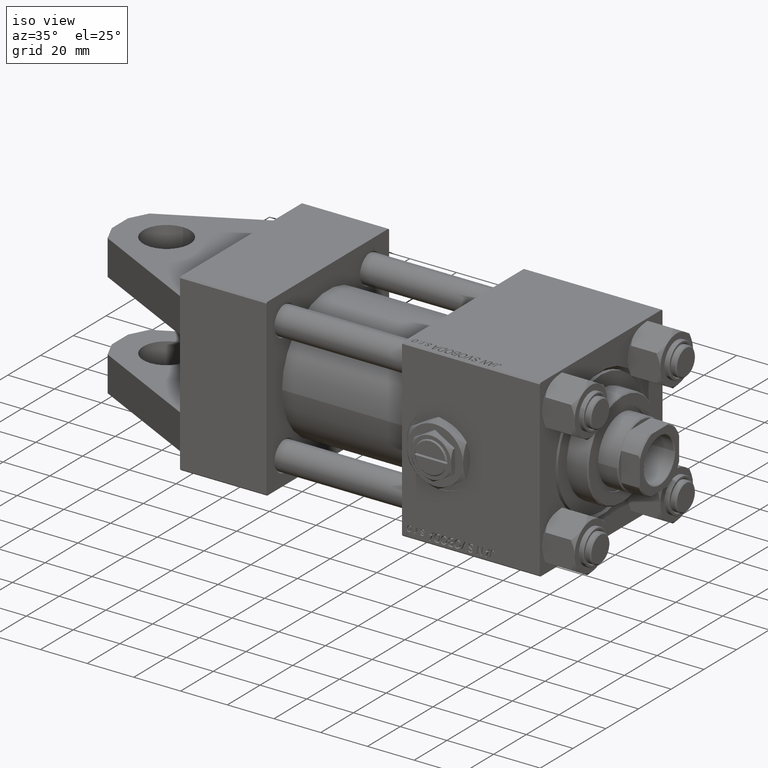
[diagram: clean part render]
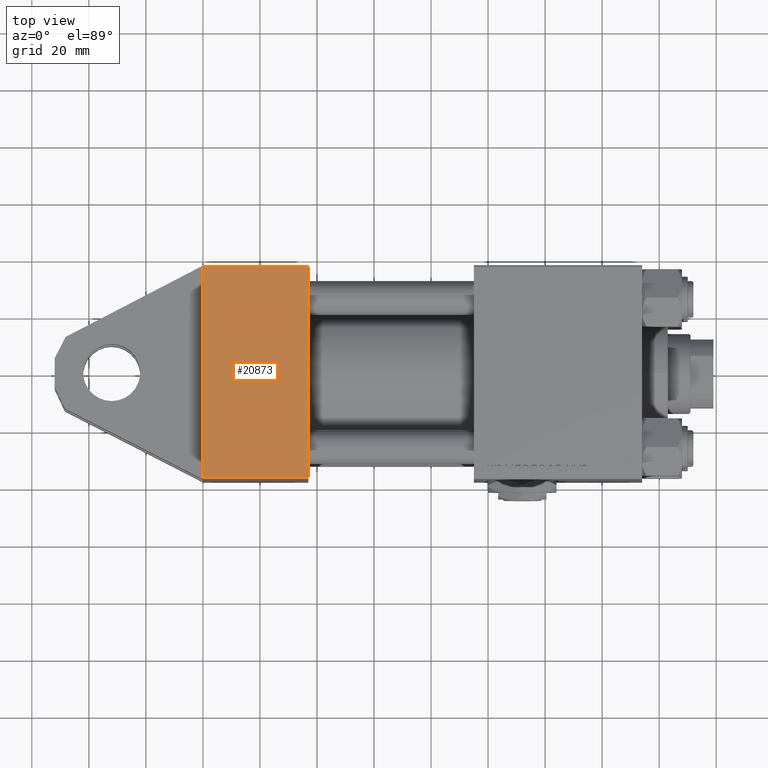
[diagram: tour spotlight — one face highlighted and labeled with its STEP entity id]
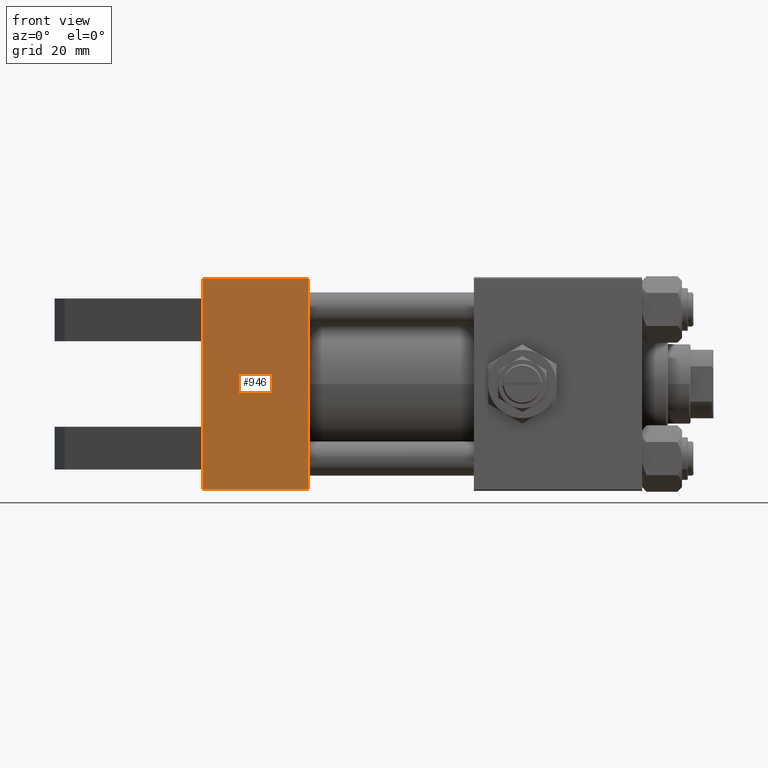
[diagram: tour spotlight — one face highlighted and labeled with its STEP entity id]
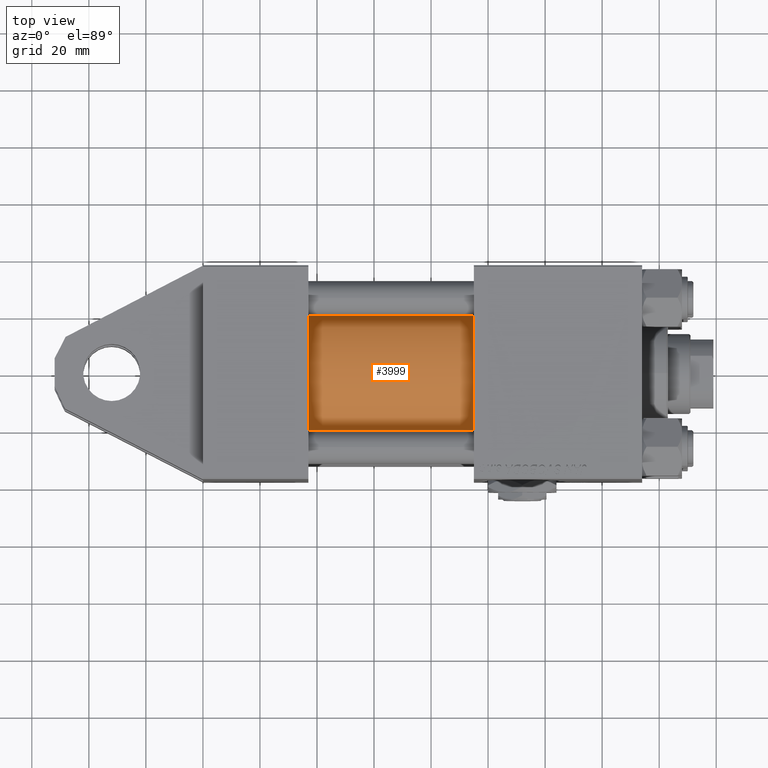
[diagram: tour spotlight — one face highlighted and labeled with its STEP entity id]
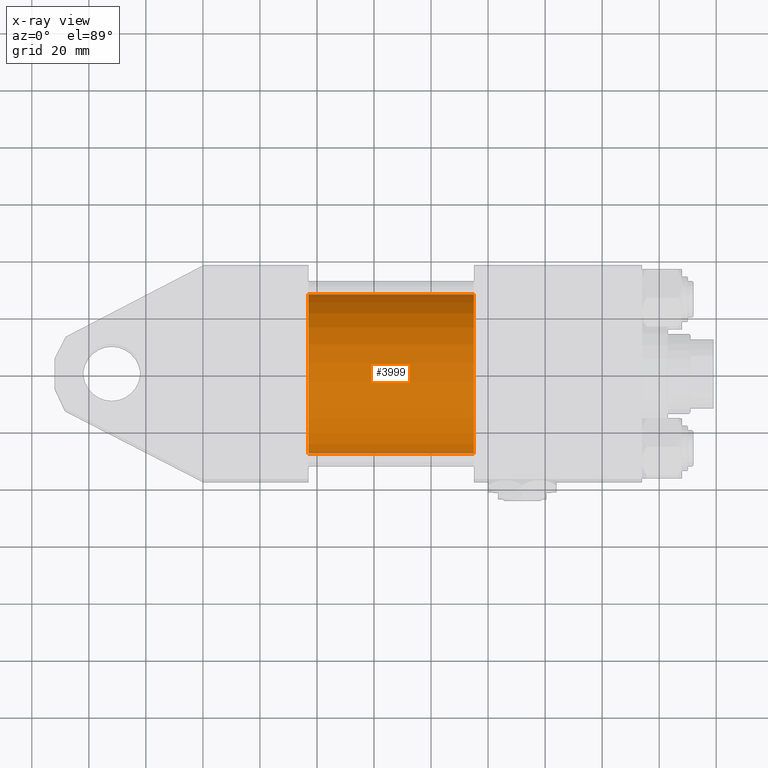
[diagram: x-ray of the same camera — body ghosted, this tour face saturated]
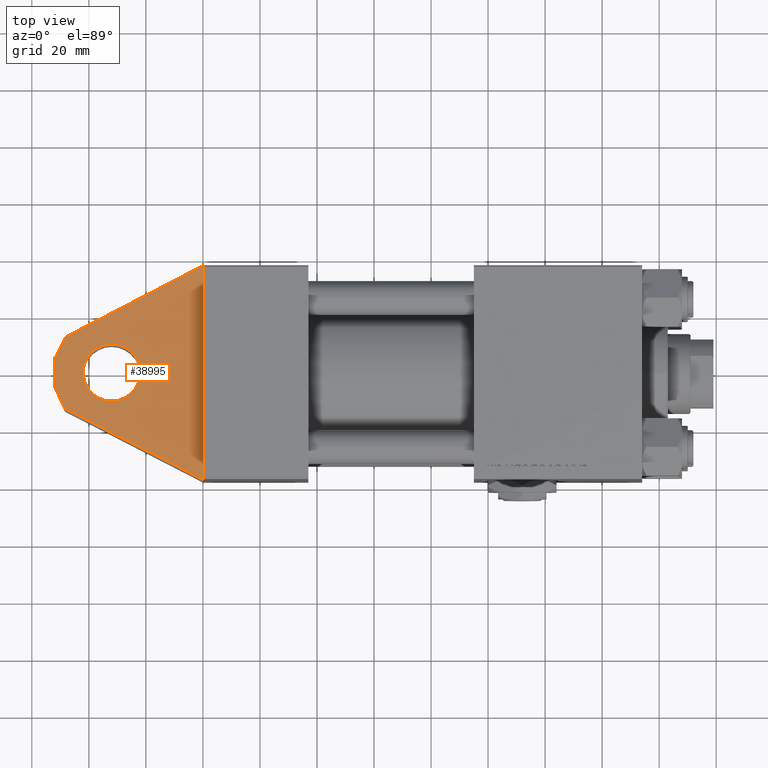
[diagram: tour spotlight — one face highlighted and labeled with its STEP entity id]
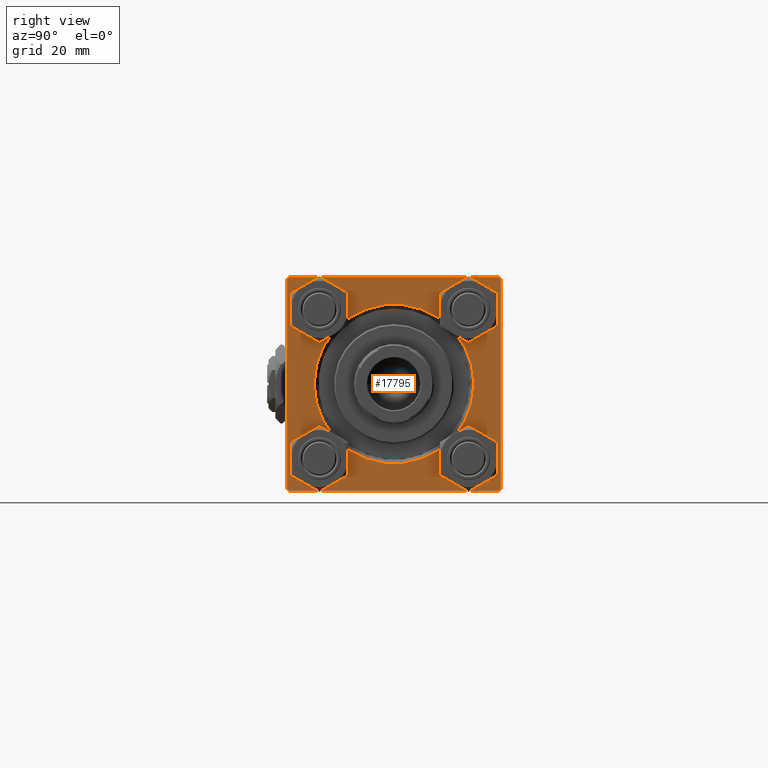
[diagram: tour spotlight — one face highlighted and labeled with its STEP entity id]
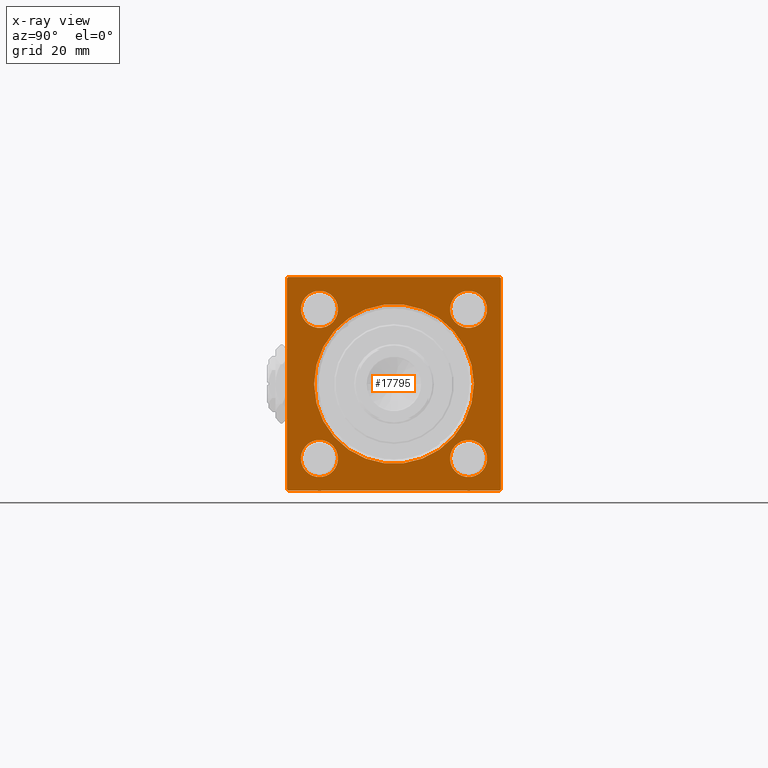
[diagram: x-ray of the same camera — body ghosted, this tour face saturated]
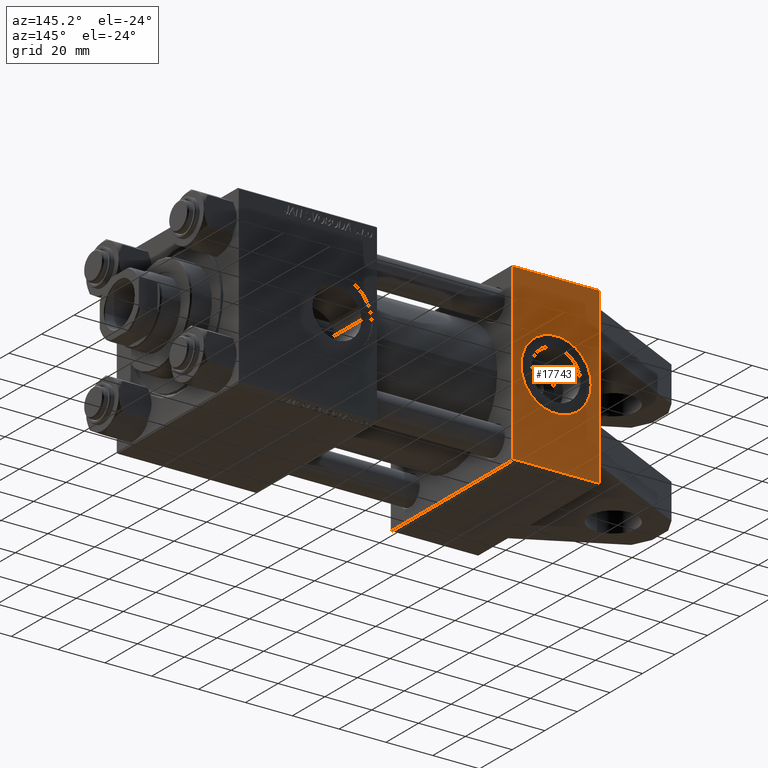
[diagram: tour spotlight — one face highlighted and labeled with its STEP entity id]
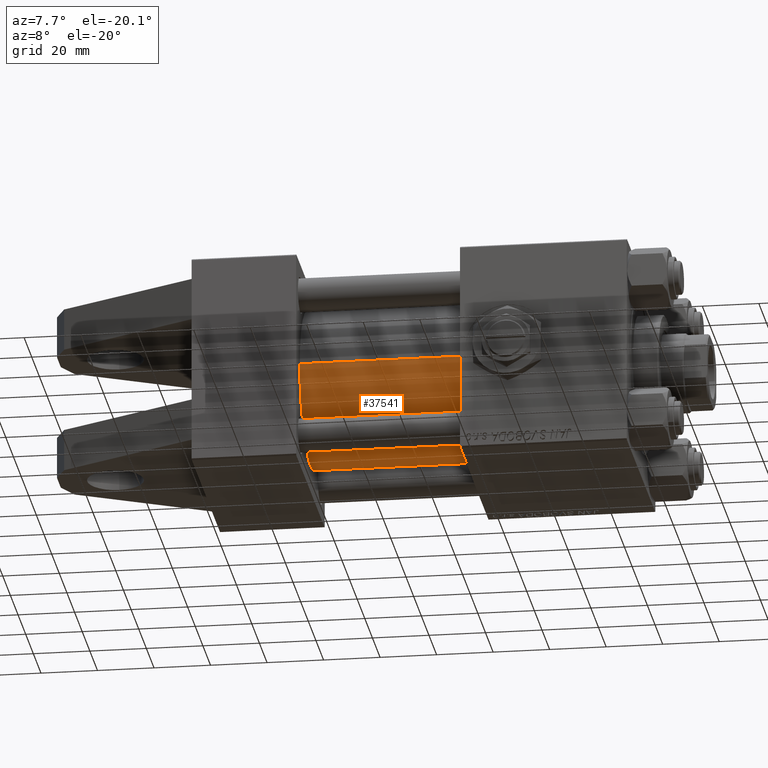
[diagram: tour spotlight — one face highlighted and labeled with its STEP entity id]
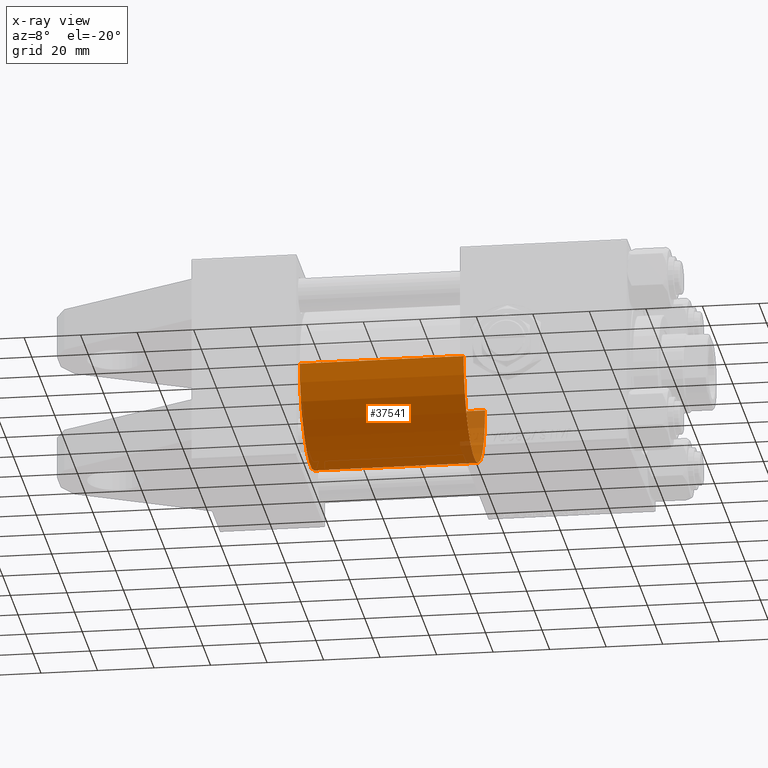
[diagram: x-ray of the same camera — body ghosted, this tour face saturated]
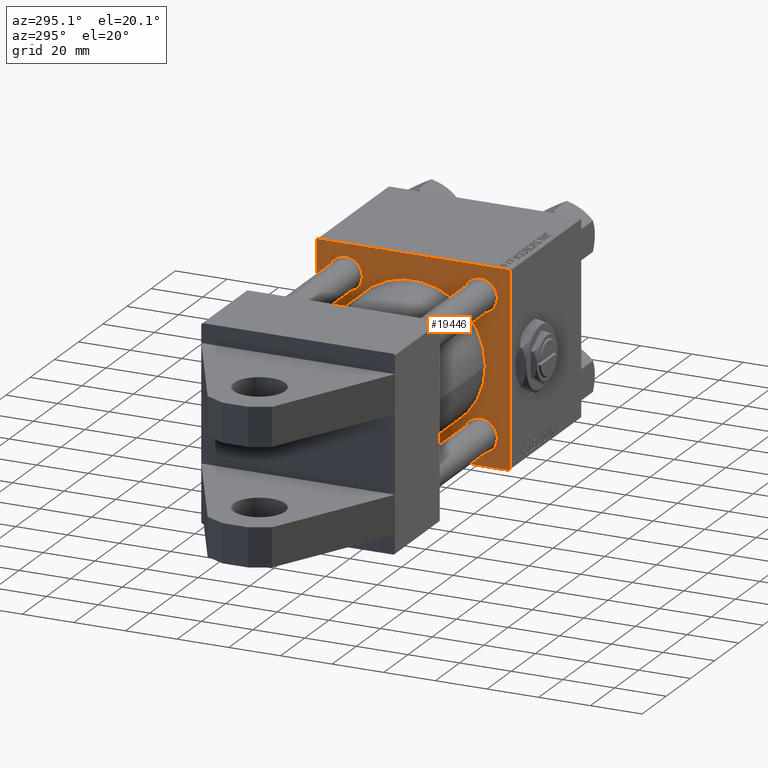
[diagram: tour spotlight — one face highlighted and labeled with its STEP entity id]
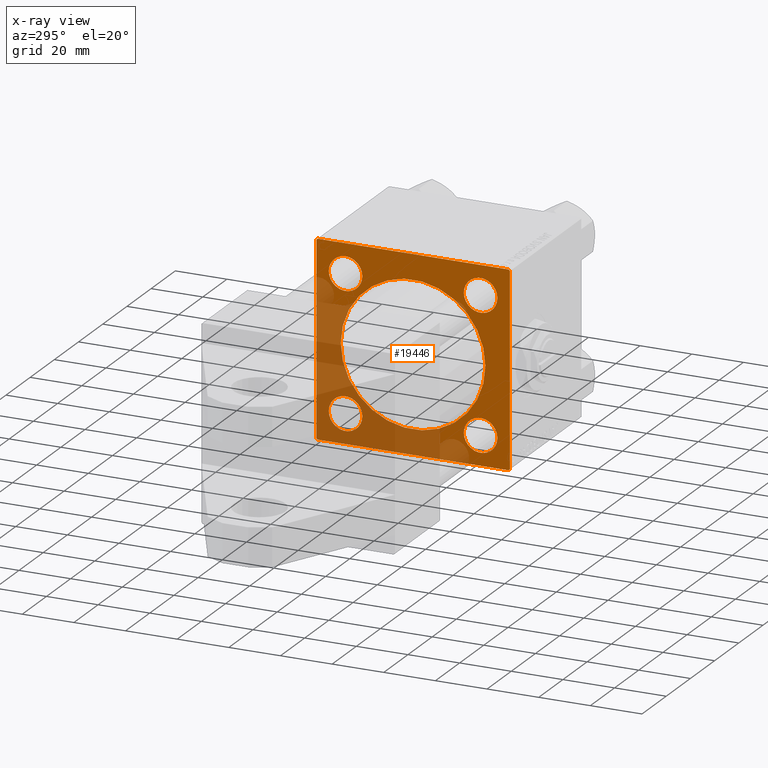
[diagram: x-ray of the same camera — body ghosted, this tour face saturated]
A machine part: a face-by-face anatomy tour. The part has 1175 B-rep faces; the first image is the clean iso view, then the 8 largest visible faces are spotlighted one at a time (largest first), each with its STEP entity span.

Face 1 — top view, entity #20873. In plain terms, the highlighted planar face has unit normal (0, 0, -1).
Definition (entity closure, byte-faithful):
#2497 = VECTOR ( 'NONE', #38030, 1000.000000000000000 ) ;
#2852 = EDGE_LOOP ( 'NONE', ( #17470, #24038, #27844, #37971 ) ) ;
#4362 = EDGE_CURVE ( 'NONE', #51131, #28926, #27418, .T. ) ;
#6036 = DIRECTION ( 'NONE',  ( 0.000000000000000000, 9.251858538542971581E-17, -1.000000000000000000 ) ) ;
#7659 = CARTESIAN_POINT ( 'NONE',  ( 37.00000000000000000, -37.50000000000000000, -37.00000000000003553 ) ) ;
#11223 = CARTESIAN_POINT ( 'NONE',  ( 0.000000000000000000, -37.50000000000000711, 37.49999999999999289 ) ) ;
#11523 = FACE_OUTER_BOUND ( 'NONE', #2852, .T. ) ;
#15293 = CARTESIAN_POINT ( 'NONE',  ( 37.00000000000000000, -37.50000000000000711, 36.99999999999999289 ) ) ;
#16441 = VERTEX_POINT ( 'NONE', #45494 ) ;
#17470 = ORIENTED_EDGE ( 'NONE', *, *, #37013, .T. ) ;
#19824 = AXIS2_PLACEMENT_3D ( 'NONE', #40133, #27389, #23487 ) ;
#20873 = ADVANCED_FACE ( 'NONE', ( #11523 ), #44274, .F. ) ;
#21453 = CARTESIAN_POINT ( 'NONE',  ( 37.00000000000000000, -37.50000000000000000, -37.00000000000003553 ) ) ;
#22457 = DIRECTION ( 'NONE',  ( 0.000000000000000000, 9.251858538542971581E-17, -1.000000000000000000 ) ) ;
#23487 = DIRECTION ( 'NONE',  ( 0.000000000000000000, -9.251858538542971581E-17, 1.000000000000000000 ) ) ;
#24038 = ORIENTED_EDGE ( 'NONE', *, *, #4362, .T. ) ;
#27389 = DIRECTION ( 'NONE',  ( -0.000000000000000000, 1.000000000000000000, 9.251858538542971581E-17 ) ) ;
#27418 = LINE ( 'NONE', #7659, #29089 ) ;
#27844 = ORIENTED_EDGE ( 'NONE', *, *, #35115, .F. ) ;
#28926 = VERTEX_POINT ( 'NONE', #21453 ) ;
#29089 = VECTOR ( 'NONE', #43544, 1000.000000000000000 ) ;
#30516 = CARTESIAN_POINT ( 'NONE',  ( 37.00000000000000000, -37.50000000000000711, 37.49999999999999289 ) ) ;
#31043 = LINE ( 'NONE', #30516, #40099 ) ;
#31873 = VECTOR ( 'NONE', #6036, 1000.000000000000000 ) ;
#33608 = LINE ( 'NONE', #49479, #2497 ) ;
#35115 = EDGE_CURVE ( 'NONE', #51177, #28926, #31043, .T. ) ;
#37013 = EDGE_CURVE ( 'NONE', #16441, #51131, #46844, .T. ) ;
#37971 = ORIENTED_EDGE ( 'NONE', *, *, #49663, .T. ) ;
#38030 = DIRECTION ( 'NONE',  ( -1.000000000000000000, 0.000000000000000000, 0.000000000000000000 ) ) ;
#40099 = VECTOR ( 'NONE', #22457, 1000.000000000000000 ) ;
#40133 = CARTESIAN_POINT ( 'NONE',  ( 37.00000000000000000, -37.50000000000000711, 37.49999999999999289 ) ) ;
#43123 = CARTESIAN_POINT ( 'NONE',  ( 0.000000000000000000, -37.50000000000000000, -37.00000000000003553 ) ) ;
#43544 = DIRECTION ( 'NONE',  ( 1.000000000000000000, 0.000000000000000000, 0.000000000000000000 ) ) ;
#44274 = PLANE ( 'NONE',  #19824 ) ;
#45494 = CARTESIAN_POINT ( 'NONE',  ( 0.000000000000000000, -37.50000000000000711, 36.99999999999999289 ) ) ;
#46844 = LINE ( 'NONE', #11223, #31873 ) ;
#49479 = CARTESIAN_POINT ( 'NONE',  ( 37.00000000000000000, -37.50000000000000711, 36.99999999999999289 ) ) ;
#49663 = EDGE_CURVE ( 'NONE', #51177, #16441, #33608, .T. ) ;
#51131 = VERTEX_POINT ( 'NONE', #43123 ) ;
#51177 = VERTEX_POINT ( 'NONE', #15293 ) ;

Face 2 — front view, entity #946. In plain terms, the highlighted planar face has unit normal (0, -1, -0).
Definition (entity closure, byte-faithful):
#504 = CARTESIAN_POINT ( 'NONE',  ( 0.000000000000000000, 36.99999999999997868, -37.50000000000000000 ) ) ;
#785 = ORIENTED_EDGE ( 'NONE', *, *, #34387, .F. ) ;
#946 = ADVANCED_FACE ( 'NONE', ( #27755 ), #7741, .T. ) ;
#2313 = DIRECTION ( 'NONE',  ( -0.000000000000000000, 1.000000000000000000, -0.000000000000000000 ) ) ;
#3235 = DIRECTION ( 'NONE',  ( -1.000000000000000000, 0.000000000000000000, 0.000000000000000000 ) ) ;
#3500 = CARTESIAN_POINT ( 'NONE',  ( 0.000000000000000000, -37.00000000000002132, -37.50000000000000711 ) ) ;
#3970 = CARTESIAN_POINT ( 'NONE',  ( 0.000000000000000000, 37.49999999999999289, -37.50000000000000000 ) ) ;
#4775 = LINE ( 'NONE', #48726, #22994 ) ;
#5231 = EDGE_LOOP ( 'NONE', ( #41103, #46734, #44998, #11207, #45094, #47619, #785, #38409 ) ) ;
#7741 = PLANE ( 'NONE',  #28149 ) ;
#9105 = VERTEX_POINT ( 'NONE', #39507 ) ;
#10552 = LINE ( 'NONE', #22513, #46696 ) ;
#10642 = LINE ( 'NONE', #49645, #25448 ) ;
#11131 = DIRECTION ( 'NONE',  ( 0.000000000000000000, 9.251858538542972814E-17, -1.000000000000000000 ) ) ;
#11207 = ORIENTED_EDGE ( 'NONE', *, *, #48792, .T. ) ;
#11299 = LINE ( 'NONE', #3500, #12421 ) ;
#12421 = VECTOR ( 'NONE', #3235, 1000.000000000000000 ) ;
#13040 = CARTESIAN_POINT ( 'NONE',  ( 0.000000000000000000, 15.00000000000000000, -37.50000000000000000 ) ) ;
#13898 = DIRECTION ( 'NONE',  ( -0.000000000000000000, -1.000000000000000000, -0.000000000000000000 ) ) ;
#15192 = EDGE_CURVE ( 'NONE', #49035, #20926, #31405, .T. ) ;
#15885 = VERTEX_POINT ( 'NONE', #51028 ) ;
#15939 = LINE ( 'NONE', #3970, #45065 ) ;
#16615 = EDGE_CURVE ( 'NONE', #32968, #9105, #10642, .T. ) ;
#17392 = DIRECTION ( 'NONE',  ( 0.000000000000000000, -1.000000000000000000, -9.251858538542972814E-17 ) ) ;
#18661 = CARTESIAN_POINT ( 'NONE',  ( 37.00000000000000000, -37.00000000000002132, -37.50000000000000711 ) ) ;
#19444 = CARTESIAN_POINT ( 'NONE',  ( 37.00000000000000000, 36.99999999999997868, -37.50000000000000000 ) ) ;
#20926 = VERTEX_POINT ( 'NONE', #49442 ) ;
#21290 = LINE ( 'NONE', #37159, #45529 ) ;
#22513 = CARTESIAN_POINT ( 'NONE',  ( 0.000000000000000000, 37.49999999999999289, -37.50000000000000000 ) ) ;
#22873 = VERTEX_POINT ( 'NONE', #18661 ) ;
#22994 = VECTOR ( 'NONE', #40946, 1000.000000000000000 ) ;
#23317 = VERTEX_POINT ( 'NONE', #13040 ) ;
#23340 = CARTESIAN_POINT ( 'NONE',  ( 37.00000000000000000, 37.49999999999999289, -37.50000000000000000 ) ) ;
#25448 = VECTOR ( 'NONE', #2313, 1000.000000000000000 ) ;
#26682 = DIRECTION ( 'NONE',  ( 0.000000000000000000, -1.000000000000000000, -9.251858538542972814E-17 ) ) ;
#27755 = FACE_OUTER_BOUND ( 'NONE', #5231, .T. ) ;
#28149 = AXIS2_PLACEMENT_3D ( 'NONE', #23340, #11131, #43875 ) ;
#31405 = LINE ( 'NONE', #19444, #43694 ) ;
#31800 = DIRECTION ( 'NONE',  ( 0.000000000000000000, -1.000000000000000000, -9.251858538542972814E-17 ) ) ;
#32098 = CARTESIAN_POINT ( 'NONE',  ( 0.000000000000000000, -30.00000000000000000, -37.50000000000000711 ) ) ;
#32968 = VERTEX_POINT ( 'NONE', #32098 ) ;
#33211 = VERTEX_POINT ( 'NONE', #42920 ) ;
#33652 = LINE ( 'NONE', #33904, #38137 ) ;
#33864 = EDGE_CURVE ( 'NONE', #49035, #15885, #10552, .T. ) ;
#33904 = CARTESIAN_POINT ( 'NONE',  ( 0.000000000000000000, 30.00000000000000000, -37.50000000000000711 ) ) ;
#34387 = EDGE_CURVE ( 'NONE', #23317, #9105, #15939, .T. ) ;
#35297 = DIRECTION ( 'NONE',  ( 1.000000000000000000, 0.000000000000000000, 0.000000000000000000 ) ) ;
#37159 = CARTESIAN_POINT ( 'NONE',  ( 0.000000000000000000, 37.49999999999999289, -37.50000000000000000 ) ) ;
#38137 = VECTOR ( 'NONE', #13898, 1000.000000000000000 ) ;
#38409 = ORIENTED_EDGE ( 'NONE', *, *, #47323, .F. ) ;
#38710 = EDGE_CURVE ( 'NONE', #20926, #22873, #4775, .T. ) ;
#39507 = CARTESIAN_POINT ( 'NONE',  ( 0.000000000000000000, -15.00000000000000000, -37.50000000000000711 ) ) ;
#40946 = DIRECTION ( 'NONE',  ( 0.000000000000000000, -1.000000000000000000, -9.251858538542972814E-17 ) ) ;
#41103 = ORIENTED_EDGE ( 'NONE', *, *, #33864, .F. ) ;
#41212 = EDGE_CURVE ( 'NONE', #32968, #33211, #21290, .T. ) ;
#42920 = CARTESIAN_POINT ( 'NONE',  ( 0.000000000000000000, -37.00000000000002132, -37.50000000000000711 ) ) ;
#43694 = VECTOR ( 'NONE', #35297, 1000.000000000000000 ) ;
#43875 = DIRECTION ( 'NONE',  ( 0.000000000000000000, 1.000000000000000000, 9.251858538542972814E-17 ) ) ;
#44998 = ORIENTED_EDGE ( 'NONE', *, *, #38710, .T. ) ;
#45065 = VECTOR ( 'NONE', #31800, 1000.000000000000000 ) ;
#45094 = ORIENTED_EDGE ( 'NONE', *, *, #41212, .F. ) ;
#45529 = VECTOR ( 'NONE', #17392, 1000.000000000000000 ) ;
#46696 = VECTOR ( 'NONE', #26682, 1000.000000000000000 ) ;
#46734 = ORIENTED_EDGE ( 'NONE', *, *, #15192, .T. ) ;
#47323 = EDGE_CURVE ( 'NONE', #15885, #23317, #33652, .T. ) ;
#47619 = ORIENTED_EDGE ( 'NONE', *, *, #16615, .T. ) ;
#48726 = CARTESIAN_POINT ( 'NONE',  ( 37.00000000000000000, 37.49999999999999289, -37.50000000000000000 ) ) ;
#48792 = EDGE_CURVE ( 'NONE', #22873, #33211, #11299, .T. ) ;
#49035 = VERTEX_POINT ( 'NONE', #504 ) ;
#49442 = CARTESIAN_POINT ( 'NONE',  ( 37.00000000000000000, 36.99999999999997868, -37.50000000000000000 ) ) ;
#49645 = CARTESIAN_POINT ( 'NONE',  ( 0.000000000000000000, -30.00000000000000000, -37.50000000000000711 ) ) ;
#51028 = CARTESIAN_POINT ( 'NONE',  ( 0.000000000000000000, 30.00000000000000000, -37.50000000000000711 ) ) ;

Face 3 — top view, entity #3999. An x-ray twin of the same camera follows (body ghosted, this face saturated) — the face is partly hidden behind the body. In plain terms, the highlighted cylindrical surface (partial cylindrical patch) has radius 28 mm, axis along (-1, -0, 0).
Definition (entity closure, byte-faithful):
#21 = CARTESIAN_POINT ( 'NONE',  ( 95.00000000000000000, -4.043591434102586818E-17, -28.00000000000000000 ) ) ;
#1584 = VERTEX_POINT ( 'NONE', #47123 ) ;
#3718 = VECTOR ( 'NONE', #36003, 1000.000000000000000 ) ;
#3999 = ADVANCED_FACE ( 'NONE', ( #35531 ), #8223, .T. ) ;
#4610 = CARTESIAN_POINT ( 'NONE',  ( 37.00000000000000000, -3.469446951953614189E-15, 28.00000000000000000 ) ) ;
#4946 = AXIS2_PLACEMENT_3D ( 'NONE', #19674, #15514, #48000 ) ;
#5729 = ORIENTED_EDGE ( 'NONE', *, *, #7173, .F. ) ;
#6503 = DIRECTION ( 'NONE',  ( 0.000000000000000000, 0.000000000000000000, 1.000000000000000000 ) ) ;
#7173 = EDGE_CURVE ( 'NONE', #25875, #1584, #8322, .T. ) ;
#7354 = CARTESIAN_POINT ( 'NONE',  ( 95.00000000000000000, -4.043591434102586818E-17, -28.00000000000000000 ) ) ;
#8223 = CYLINDRICAL_SURFACE ( 'NONE', #4946, 28.00000000000000000 ) ;
#8322 = LINE ( 'NONE', #21, #34986 ) ;
#8366 = VERTEX_POINT ( 'NONE', #4610 ) ;
#12073 = LINE ( 'NONE', #27927, #3718 ) ;
#12213 = EDGE_CURVE ( 'NONE', #35006, #8366, #12073, .T. ) ;
#12252 = DIRECTION ( 'NONE',  ( 1.000000000000000000, 0.000000000000000000, 0.000000000000000000 ) ) ;
#15514 = DIRECTION ( 'NONE',  ( -1.000000000000000000, -0.000000000000000000, -0.000000000000000000 ) ) ;
#15959 = AXIS2_PLACEMENT_3D ( 'NONE', #33312, #29413, #6503 ) ;
#16235 = ORIENTED_EDGE ( 'NONE', *, *, #12213, .T. ) ;
#19674 = CARTESIAN_POINT ( 'NONE',  ( 95.00000000000000000, -3.469446951953614189E-15, 0.000000000000000000 ) ) ;
#20882 = ORIENTED_EDGE ( 'NONE', *, *, #33040, .T. ) ;
#24212 = ORIENTED_EDGE ( 'NONE', *, *, #37881, .F. ) ;
#24213 = DIRECTION ( 'NONE',  ( 0.000000000000000000, 0.000000000000000000, -1.000000000000000000 ) ) ;
#24408 = AXIS2_PLACEMENT_3D ( 'NONE', #47106, #12252, #24213 ) ;
#25875 = VERTEX_POINT ( 'NONE', #7354 ) ;
#27927 = CARTESIAN_POINT ( 'NONE',  ( 95.00000000000000000, -3.469446951953614189E-15, 28.00000000000000000 ) ) ;
#29242 = CIRCLE ( 'NONE', #15959, 28.00000000000000000 ) ;
#29413 = DIRECTION ( 'NONE',  ( 1.000000000000000000, -0.000000000000000000, 0.000000000000000000 ) ) ;
#33040 = EDGE_CURVE ( 'NONE', #8366, #1584, #29242, .T. ) ;
#33312 = CARTESIAN_POINT ( 'NONE',  ( 37.00000000000000000, -3.469446951953614189E-15, 0.000000000000000000 ) ) ;
#34986 = VECTOR ( 'NONE', #40822, 1000.000000000000000 ) ;
#35006 = VERTEX_POINT ( 'NONE', #35508 ) ;
#35508 = CARTESIAN_POINT ( 'NONE',  ( 95.00000000000000000, -3.469446951953614189E-15, 28.00000000000000000 ) ) ;
#35531 = FACE_OUTER_BOUND ( 'NONE', #46316, .T. ) ;
#36003 = DIRECTION ( 'NONE',  ( -1.000000000000000000, -0.000000000000000000, -0.000000000000000000 ) ) ;
#37881 = EDGE_CURVE ( 'NONE', #35006, #25875, #47656, .T. ) ;
#40822 = DIRECTION ( 'NONE',  ( -1.000000000000000000, -0.000000000000000000, -0.000000000000000000 ) ) ;
#46316 = EDGE_LOOP ( 'NONE', ( #5729, #24212, #16235, #20882 ) ) ;
#47106 = CARTESIAN_POINT ( 'NONE',  ( 95.00000000000000000, -3.469446951953614189E-15, 0.000000000000000000 ) ) ;
#47123 = CARTESIAN_POINT ( 'NONE',  ( 37.00000000000000000, -4.043591434102586818E-17, -28.00000000000000000 ) ) ;
#47656 = CIRCLE ( 'NONE', #24408, 28.00000000000000000 ) ;
#48000 = DIRECTION ( 'NONE',  ( 0.000000000000000000, 0.000000000000000000, 1.000000000000000000 ) ) ;

Face 4 — top view, entity #38995. In plain terms, the highlighted planar face has unit normal (0, 0, 1).
Definition (entity closure, byte-faithful):
#33 = EDGE_LOOP ( 'NONE', ( #12447, #46072, #42663, #16272, #9900, #14039 ) ) ;
#129 = CARTESIAN_POINT ( 'NONE',  ( -48.15077811301358679, -30.00000000000000000, 12.49989272354909353 ) ) ;
#618 = DIRECTION ( 'NONE',  ( 0.8875055616531780656, 0.000000000000000000, 0.4607970030660757943 ) ) ;
#1400 = LINE ( 'NONE', #49253, #7382 ) ;
#1721 = LINE ( 'NONE', #45150, #4082 ) ;
#3096 = CARTESIAN_POINT ( 'NONE',  ( -52.00000000000000711, -30.00000000000000000, -5.000000000000007105 ) ) ;
#3173 = AXIS2_PLACEMENT_3D ( 'NONE', #19392, #14705, #26686 ) ;
#4082 = VECTOR ( 'NONE', #33678, 1000.000000000000114 ) ;
#5108 = CARTESIAN_POINT ( 'NONE',  ( -32.00000000000000000, -30.00000000000000000, -10.00000000000000711 ) ) ;
#5965 = CARTESIAN_POINT ( 'NONE',  ( -32.00000000000000000, -30.00000000000000000, 9.999999999999992895 ) ) ;
#7001 = VERTEX_POINT ( 'NONE', #5965 ) ;
#7344 = VECTOR ( 'NONE', #20966, 1000.000000000000000 ) ;
#7382 = VECTOR ( 'NONE', #41448, 1000.000000000000000 ) ;
#8569 = AXIS2_PLACEMENT_3D ( 'NONE', #32121, #39444, #48251 ) ;
#9900 = ORIENTED_EDGE ( 'NONE', *, *, #21488, .F. ) ;
#11748 = VERTEX_POINT ( 'NONE', #14242 ) ;
#11988 = EDGE_LOOP ( 'NONE', ( #14223, #46023 ) ) ;
#12325 = LINE ( 'NONE', #24530, #46495 ) ;
#12447 = ORIENTED_EDGE ( 'NONE', *, *, #25648, .F. ) ;
#13393 = VECTOR ( 'NONE', #618, 1000.000000000000114 ) ;
#13678 = VERTEX_POINT ( 'NONE', #22993 ) ;
#14039 = ORIENTED_EDGE ( 'NONE', *, *, #30998, .F. ) ;
#14223 = ORIENTED_EDGE ( 'NONE', *, *, #36478, .T. ) ;
#14242 = CARTESIAN_POINT ( 'NONE',  ( -52.00000000000000711, -30.00000000000000000, 4.999999999999992895 ) ) ;
#14705 = DIRECTION ( 'NONE',  ( -0.000000000000000000, 1.000000000000000000, -0.000000000000000000 ) ) ;
#15227 = DIRECTION ( 'NONE',  ( 0.000000000000000000, 0.000000000000000000, 1.000000000000000000 ) ) ;
#15995 = LINE ( 'NONE', #46941, #25902 ) ;
#16272 = ORIENTED_EDGE ( 'NONE', *, *, #49561, .F. ) ;
#18666 = FACE_BOUND ( 'NONE', #11988, .T. ) ;
#19195 = DIRECTION ( 'NONE',  ( 0.000000000000000000, 0.000000000000000000, 1.000000000000000000 ) ) ;
#19392 = CARTESIAN_POINT ( 'NONE',  ( -32.00000000000000000, -30.00000000000000000, -6.938893903907228378E-15 ) ) ;
#20966 = DIRECTION ( 'NONE',  ( 0.000000000000000000, 0.000000000000000000, -1.000000000000000000 ) ) ;
#21488 = EDGE_CURVE ( 'NONE', #27712, #32968, #37078, .T. ) ;
#22993 = CARTESIAN_POINT ( 'NONE',  ( -48.43732805352595960, -30.00000000000000000, -12.64017464471899110 ) ) ;
#23920 = CIRCLE ( 'NONE', #3173, 10.00000000000000000 ) ;
#24530 = CARTESIAN_POINT ( 'NONE',  ( -48.43732805352595960, -30.00000000000000000, -12.64017464471899110 ) ) ;
#25648 = EDGE_CURVE ( 'NONE', #11748, #48191, #1400, .T. ) ;
#25902 = VECTOR ( 'NONE', #15227, 1000.000000000000000 ) ;
#26686 = DIRECTION ( 'NONE',  ( 0.000000000000000000, 0.000000000000000000, 1.000000000000000000 ) ) ;
#27197 = EDGE_CURVE ( 'NONE', #13678, #47852, #1721, .T. ) ;
#27712 = VERTEX_POINT ( 'NONE', #29373 ) ;
#27982 = CARTESIAN_POINT ( 'NONE',  ( -48.15077811301358679, -30.00000000000000000, 12.49989272354909353 ) ) ;
#29373 = CARTESIAN_POINT ( 'NONE',  ( 0.000000000000000000, -30.00000000000001421, 37.49999999999999289 ) ) ;
#29638 = AXIS2_PLACEMENT_3D ( 'NONE', #38704, #47012, #19195 ) ;
#30998 = EDGE_CURVE ( 'NONE', #48191, #27712, #32081, .T. ) ;
#32081 = LINE ( 'NONE', #129, #13393 ) ;
#32098 = CARTESIAN_POINT ( 'NONE',  ( 0.000000000000000000, -30.00000000000000000, -37.50000000000000711 ) ) ;
#32121 = CARTESIAN_POINT ( 'NONE',  ( -32.00000000000000000, -30.00000000000000000, -6.938893903907228378E-15 ) ) ;
#32956 = EDGE_CURVE ( 'NONE', #47852, #11748, #15995, .T. ) ;
#32968 = VERTEX_POINT ( 'NONE', #32098 ) ;
#33678 = DIRECTION ( 'NONE',  ( -0.4226182617406929465, 0.000000000000000000, 0.9063077870366529343 ) ) ;
#35305 = FACE_OUTER_BOUND ( 'NONE', #33, .T. ) ;
#36478 = EDGE_CURVE ( 'NONE', #7001, #38445, #47622, .T. ) ;
#37078 = LINE ( 'NONE', #45394, #7344 ) ;
#38445 = VERTEX_POINT ( 'NONE', #5108 ) ;
#38704 = CARTESIAN_POINT ( 'NONE',  ( 0.000000000000000000, -30.00000000000000000, 0.000000000000000000 ) ) ;
#38968 = PLANE ( 'NONE',  #29638 ) ;
#38995 = ADVANCED_FACE ( 'NONE', ( #18666, #35305 ), #38968, .T. ) ;
#39444 = DIRECTION ( 'NONE',  ( -0.000000000000000000, 1.000000000000000000, -0.000000000000000000 ) ) ;
#41331 = EDGE_CURVE ( 'NONE', #38445, #7001, #23920, .T. ) ;
#41448 = DIRECTION ( 'NONE',  ( 0.4566099510066921607, 0.000000000000000000, 0.8896669897448518105 ) ) ;
#42663 = ORIENTED_EDGE ( 'NONE', *, *, #27197, .F. ) ;
#45083 = DIRECTION ( 'NONE',  ( -0.8896669897448514774, 0.000000000000000000, 0.4566099510066927158 ) ) ;
#45150 = CARTESIAN_POINT ( 'NONE',  ( -52.00000000000000711, -30.00000000000000000, -5.000000000000007105 ) ) ;
#45394 = CARTESIAN_POINT ( 'NONE',  ( 0.000000000000000000, -30.00000000000000000, 37.49999999999999289 ) ) ;
#46023 = ORIENTED_EDGE ( 'NONE', *, *, #41331, .T. ) ;
#46072 = ORIENTED_EDGE ( 'NONE', *, *, #32956, .F. ) ;
#46495 = VECTOR ( 'NONE', #45083, 1000.000000000000000 ) ;
#46941 = CARTESIAN_POINT ( 'NONE',  ( -52.00000000000000711, -30.00000000000000000, -5.000000000000007105 ) ) ;
#47012 = DIRECTION ( 'NONE',  ( 0.000000000000000000, -1.000000000000000000, 0.000000000000000000 ) ) ;
#47622 = CIRCLE ( 'NONE', #8569, 10.00000000000000000 ) ;
#47852 = VERTEX_POINT ( 'NONE', #3096 ) ;
#48191 = VERTEX_POINT ( 'NONE', #27982 ) ;
#48251 = DIRECTION ( 'NONE',  ( 0.000000000000000000, 0.000000000000000000, 1.000000000000000000 ) ) ;
#49253 = CARTESIAN_POINT ( 'NONE',  ( -52.00000000000000711, -30.00000000000000000, 4.999999999999992895 ) ) ;
#49561 = EDGE_CURVE ( 'NONE', #32968, #13678, #12325, .T. ) ;

Face 5 — right view, entity #17795. An x-ray twin of the same camera follows (body ghosted, this face saturated) — the face is partly hidden behind the body. In plain terms, the highlighted planar face has unit normal (-1, 0, 0).
Definition (entity closure, byte-faithful):
#856 = CIRCLE ( 'NONE', #29913, 27.99999999999999645 ) ;
#924 = CIRCLE ( 'NONE', #3407, 6.500000000000002665 ) ;
#1083 = CARTESIAN_POINT ( 'NONE',  ( 154.0000000000000000, -26.15000000000000213, -26.15000000000000213 ) ) ;
#1576 = CARTESIAN_POINT ( 'NONE',  ( 154.0000000000000000, 0.000000000000000000, -27.99999999999999645 ) ) ;
#1765 = CARTESIAN_POINT ( 'NONE',  ( 154.0000000000000000, 37.00000000000000000, -37.50000000000000000 ) ) ;
#1833 = ORIENTED_EDGE ( 'NONE', *, *, #30743, .T. ) ;
#2202 = DIRECTION ( 'NONE',  ( -1.000000000000000000, -0.000000000000000000, 0.000000000000000000 ) ) ;
#2393 = CIRCLE ( 'NONE', #49838, 6.500000000000002665 ) ;
#2501 = DIRECTION ( 'NONE',  ( 0.000000000000000000, -9.251858538542972814E-17, -1.000000000000000000 ) ) ;
#2971 = EDGE_LOOP ( 'NONE', ( #45609, #15474 ) ) ;
#3292 = EDGE_CURVE ( 'NONE', #29075, #9390, #32343, .T. ) ;
#3407 = AXIS2_PLACEMENT_3D ( 'NONE', #40467, #44119, #40732 ) ;
#3982 = EDGE_CURVE ( 'NONE', #4560, #38690, #19943, .T. ) ;
#4212 = DIRECTION ( 'NONE',  ( 0.000000000000000000, 0.000000000000000000, 1.000000000000000000 ) ) ;
#4213 = VERTEX_POINT ( 'NONE', #46146 ) ;
#4560 = VERTEX_POINT ( 'NONE', #40622 ) ;
#4684 = EDGE_LOOP ( 'NONE', ( #27346, #49845 ) ) ;
#5136 = CARTESIAN_POINT ( 'NONE',  ( 154.0000000000000000, 26.14999999999999858, -26.15000000000000213 ) ) ;
#5635 = AXIS2_PLACEMENT_3D ( 'NONE', #29171, #41137, #21351 ) ;
#5788 = CIRCLE ( 'NONE', #14916, 6.500000000000002665 ) ;
#6208 = LINE ( 'NONE', #42102, #48949 ) ;
#6378 = DIRECTION ( 'NONE',  ( 0.000000000000000000, 0.000000000000000000, 1.000000000000000000 ) ) ;
#6541 = EDGE_LOOP ( 'NONE', ( #29944, #1833 ) ) ;
#6892 = CARTESIAN_POINT ( 'NONE',  ( 154.0000000000000000, 0.000000000000000000, 0.000000000000000000 ) ) ;
#7610 = CARTESIAN_POINT ( 'NONE',  ( 154.0000000000000000, -36.99999999999998579, -37.50000000000000000 ) ) ;
#8188 = ORIENTED_EDGE ( 'NONE', *, *, #8518, .T. ) ;
#8306 = CIRCLE ( 'NONE', #44865, 6.500000000000008882 ) ;
#8459 = ORIENTED_EDGE ( 'NONE', *, *, #11025, .T. ) ;
#8518 = EDGE_CURVE ( 'NONE', #12243, #50379, #38914, .T. ) ;
#8690 = CARTESIAN_POINT ( 'NONE',  ( 154.0000000000000000, 37.00000000000000000, 37.49999999999999289 ) ) ;
#8765 = VECTOR ( 'NONE', #10782, 1000.000000000000000 ) ;
#8836 = VERTEX_POINT ( 'NONE', #43011 ) ;
#8891 = DIRECTION ( 'NONE',  ( 0.000000000000000000, 0.000000000000000000, 1.000000000000000000 ) ) ;
#9390 = VERTEX_POINT ( 'NONE', #44168 ) ;
#9753 = DIRECTION ( 'NONE',  ( -0.000000000000000000, 0.7071067811865425767, 0.7071067811865525687 ) ) ;
#9921 = EDGE_CURVE ( 'NONE', #38690, #24260, #50288, .T. ) ;
#10174 = CARTESIAN_POINT ( 'NONE',  ( 154.0000000000000000, -36.99999999999998579, -37.50000000000000000 ) ) ;
#10247 = VERTEX_POINT ( 'NONE', #10454 ) ;
#10249 = VERTEX_POINT ( 'NONE', #38018 ) ;
#10454 = CARTESIAN_POINT ( 'NONE',  ( 154.0000000000000000, 26.14999999999999858, -19.64999999999999503 ) ) ;
#10782 = DIRECTION ( 'NONE',  ( 0.000000000000000000, -1.000000000000000000, -1.850371707708594316E-16 ) ) ;
#11025 = EDGE_CURVE ( 'NONE', #24260, #12243, #35279, .T. ) ;
#12112 = DIRECTION ( 'NONE',  ( 0.000000000000000000, 0.000000000000000000, 1.000000000000000000 ) ) ;
#12243 = VERTEX_POINT ( 'NONE', #44311 ) ;
#12459 = VERTEX_POINT ( 'NONE', #7610 ) ;
#12562 = VERTEX_POINT ( 'NONE', #22565 ) ;
#12679 = EDGE_CURVE ( 'NONE', #17529, #12459, #28514, .T. ) ;
#13731 = VECTOR ( 'NONE', #32154, 1000.000000000000000 ) ;
#14156 = DIRECTION ( 'NONE',  ( 0.000000000000000000, 0.000000000000000000, 1.000000000000000000 ) ) ;
#14613 = ORIENTED_EDGE ( 'NONE', *, *, #51244, .T. ) ;
#14677 = FACE_BOUND ( 'NONE', #4684, .T. ) ;
#14916 = AXIS2_PLACEMENT_3D ( 'NONE', #33506, #41329, #32047 ) ;
#14984 = CARTESIAN_POINT ( 'NONE',  ( 154.0000000000000000, -37.50000000000000000, 37.49999999999997868 ) ) ;
#15224 = VERTEX_POINT ( 'NONE', #51414 ) ;
#15474 = ORIENTED_EDGE ( 'NONE', *, *, #3292, .T. ) ;
#16082 = DIRECTION ( 'NONE',  ( -1.000000000000000000, -0.000000000000000000, 0.000000000000000000 ) ) ;
#16203 = ORIENTED_EDGE ( 'NONE', *, *, #3982, .T. ) ;
#17529 = VERTEX_POINT ( 'NONE', #1765 ) ;
#17795 = ADVANCED_FACE ( 'NONE', ( #14677, #41997, #30542, #37836, #46409, #34696 ), #42527, .F. ) ;
#18519 = VECTOR ( 'NONE', #2501, 1000.000000000000000 ) ;
#18538 = CIRCLE ( 'NONE', #31839, 6.500000000000008882 ) ;
#18869 = CARTESIAN_POINT ( 'NONE',  ( 154.0000000000000000, -26.15000000000000213, -19.64999999999999503 ) ) ;
#19027 = AXIS2_PLACEMENT_3D ( 'NONE', #5136, #16082, #43649 ) ;
#19089 = CARTESIAN_POINT ( 'NONE',  ( 154.0000000000000000, -26.14999999999999147, 26.14999999999999503 ) ) ;
#19123 = CARTESIAN_POINT ( 'NONE',  ( 154.0000000000000000, 26.14999999999999858, 26.15000000000000213 ) ) ;
#19943 = LINE ( 'NONE', #27738, #31538 ) ;
#20219 = EDGE_CURVE ( 'NONE', #15224, #48841, #28056, .T. ) ;
#20414 = VECTOR ( 'NONE', #39210, 1000.000000000000114 ) ;
#20434 = DIRECTION ( 'NONE',  ( 0.000000000000000000, -0.7071067811865474617, 0.7071067811865474617 ) ) ;
#20670 = DIRECTION ( 'NONE',  ( -1.000000000000000000, -0.000000000000000000, 0.000000000000000000 ) ) ;
#21092 = DIRECTION ( 'NONE',  ( -1.000000000000000000, -0.000000000000000000, 0.000000000000000000 ) ) ;
#21351 = DIRECTION ( 'NONE',  ( 0.000000000000000000, 0.000000000000000000, 1.000000000000000000 ) ) ;
#21456 = LINE ( 'NONE', #33662, #29088 ) ;
#22565 = CARTESIAN_POINT ( 'NONE',  ( 154.0000000000000000, 37.50000000000000000, -36.99999999999999289 ) ) ;
#22628 = ORIENTED_EDGE ( 'NONE', *, *, #26006, .T. ) ;
#23343 = CARTESIAN_POINT ( 'NONE',  ( 154.0000000000000000, 37.50000000000000000, -37.50000000000000000 ) ) ;
#23514 = EDGE_CURVE ( 'NONE', #10247, #10249, #36489, .T. ) ;
#24249 = ORIENTED_EDGE ( 'NONE', *, *, #12679, .F. ) ;
#24260 = VERTEX_POINT ( 'NONE', #47140 ) ;
#24371 = EDGE_CURVE ( 'NONE', #9390, #29075, #5788, .T. ) ;
#24544 = DIRECTION ( 'NONE',  ( 0.000000000000000000, 0.7071067811865671127, -0.7071067811865279218 ) ) ;
#24883 = AXIS2_PLACEMENT_3D ( 'NONE', #19089, #42766, #14156 ) ;
#25469 = EDGE_CURVE ( 'NONE', #8836, #26565, #2393, .T. ) ;
#25813 = ORIENTED_EDGE ( 'NONE', *, *, #9921, .T. ) ;
#26006 = EDGE_CURVE ( 'NONE', #48841, #15224, #856, .T. ) ;
#26565 = VERTEX_POINT ( 'NONE', #42223 ) ;
#27346 = ORIENTED_EDGE ( 'NONE', *, *, #49814, .T. ) ;
#27738 = CARTESIAN_POINT ( 'NONE',  ( 154.0000000000000000, 37.00000000000000000, 37.49999999999999289 ) ) ;
#28056 = CIRCLE ( 'NONE', #5635, 27.99999999999999645 ) ;
#28057 = EDGE_LOOP ( 'NONE', ( #8188, #38010, #24249, #14613, #36446, #16203, #25813, #8459 ) ) ;
#28514 = LINE ( 'NONE', #23343, #13731 ) ;
#28833 = DIRECTION ( 'NONE',  ( -1.000000000000000000, -0.000000000000000000, 0.000000000000000000 ) ) ;
#29075 = VERTEX_POINT ( 'NONE', #46405 ) ;
#29088 = VECTOR ( 'NONE', #9753, 999.9999999999998863 ) ;
#29171 = CARTESIAN_POINT ( 'NONE',  ( 154.0000000000000000, 0.000000000000000000, 0.000000000000000000 ) ) ;
#29913 = AXIS2_PLACEMENT_3D ( 'NONE', #32799, #48421, #8891 ) ;
#29944 = ORIENTED_EDGE ( 'NONE', *, *, #25469, .T. ) ;
#30033 = DIRECTION ( 'NONE',  ( 0.000000000000000000, 0.000000000000000000, 1.000000000000000000 ) ) ;
#30535 = ORIENTED_EDGE ( 'NONE', *, *, #23514, .T. ) ;
#30542 = FACE_BOUND ( 'NONE', #6541, .T. ) ;
#30743 = EDGE_CURVE ( 'NONE', #26565, #8836, #924, .T. ) ;
#31126 = CARTESIAN_POINT ( 'NONE',  ( 154.0000000000000000, -37.50000000000000000, 36.99999999999995026 ) ) ;
#31538 = VECTOR ( 'NONE', #20434, 1000.000000000000114 ) ;
#31839 = AXIS2_PLACEMENT_3D ( 'NONE', #51372, #20670, #12112 ) ;
#32047 = DIRECTION ( 'NONE',  ( 0.000000000000000000, 0.000000000000000000, 1.000000000000000000 ) ) ;
#32154 = DIRECTION ( 'NONE',  ( 0.000000000000000000, -1.000000000000000000, 0.000000000000000000 ) ) ;
#32343 = CIRCLE ( 'NONE', #24883, 6.500000000000002665 ) ;
#32799 = CARTESIAN_POINT ( 'NONE',  ( 154.0000000000000000, 0.000000000000000000, 0.000000000000000000 ) ) ;
#33099 = EDGE_CURVE ( 'NONE', #50379, #12459, #33808, .T. ) ;
#33506 = CARTESIAN_POINT ( 'NONE',  ( 154.0000000000000000, -26.14999999999999147, 26.14999999999999503 ) ) ;
#33519 = DIRECTION ( 'NONE',  ( 0.000000000000000000, 0.000000000000000000, -1.000000000000000000 ) ) ;
#33662 = CARTESIAN_POINT ( 'NONE',  ( 154.0000000000000000, 37.50000000000000000, -36.99999999999999289 ) ) ;
#33808 = LINE ( 'NONE', #10174, #45838 ) ;
#34696 = FACE_OUTER_BOUND ( 'NONE', #28057, .T. ) ;
#34792 = CIRCLE ( 'NONE', #19027, 6.500000000000008882 ) ;
#35279 = LINE ( 'NONE', #31126, #20414 ) ;
#35343 = ORIENTED_EDGE ( 'NONE', *, *, #44333, .T. ) ;
#36169 = ORIENTED_EDGE ( 'NONE', *, *, #20219, .T. ) ;
#36194 = EDGE_LOOP ( 'NONE', ( #22628, #36169 ) ) ;
#36446 = ORIENTED_EDGE ( 'NONE', *, *, #44049, .F. ) ;
#36475 = EDGE_CURVE ( 'NONE', #41290, #4213, #18538, .T. ) ;
#36489 = CIRCLE ( 'NONE', #48099, 6.500000000000008882 ) ;
#37836 = FACE_BOUND ( 'NONE', #2971, .T. ) ;
#38010 = ORIENTED_EDGE ( 'NONE', *, *, #33099, .T. ) ;
#38018 = CARTESIAN_POINT ( 'NONE',  ( 154.0000000000000000, 26.14999999999999858, -32.65000000000001279 ) ) ;
#38690 = VERTEX_POINT ( 'NONE', #8690 ) ;
#38914 = LINE ( 'NONE', #14984, #18519 ) ;
#39210 = DIRECTION ( 'NONE',  ( -0.000000000000000000, -0.7071067811865474617, -0.7071067811865474617 ) ) ;
#40467 = CARTESIAN_POINT ( 'NONE',  ( 154.0000000000000000, 26.14999999999999858, 26.15000000000000213 ) ) ;
#40622 = CARTESIAN_POINT ( 'NONE',  ( 154.0000000000000000, 37.50000000000000000, 36.99999999999999289 ) ) ;
#40732 = DIRECTION ( 'NONE',  ( 0.000000000000000000, 0.000000000000000000, 1.000000000000000000 ) ) ;
#41137 = DIRECTION ( 'NONE',  ( -1.000000000000000000, -0.000000000000000000, 0.000000000000000000 ) ) ;
#41283 = AXIS2_PLACEMENT_3D ( 'NONE', #6892, #2202, #30033 ) ;
#41290 = VERTEX_POINT ( 'NONE', #18869 ) ;
#41329 = DIRECTION ( 'NONE',  ( -1.000000000000000000, -0.000000000000000000, 0.000000000000000000 ) ) ;
#41997 = FACE_BOUND ( 'NONE', #42687, .T. ) ;
#42102 = CARTESIAN_POINT ( 'NONE',  ( 154.0000000000000000, 37.50000000000000000, 37.49999999999999289 ) ) ;
#42223 = CARTESIAN_POINT ( 'NONE',  ( 154.0000000000000000, 26.14999999999999858, 32.65000000000001279 ) ) ;
#42527 = PLANE ( 'NONE',  #41283 ) ;
#42687 = EDGE_LOOP ( 'NONE', ( #35343, #30535 ) ) ;
#42766 = DIRECTION ( 'NONE',  ( -1.000000000000000000, -0.000000000000000000, 0.000000000000000000 ) ) ;
#42793 = CARTESIAN_POINT ( 'NONE',  ( 154.0000000000000000, -37.50000000000000711, -37.00000000000000711 ) ) ;
#43011 = CARTESIAN_POINT ( 'NONE',  ( 154.0000000000000000, 26.14999999999999858, 19.64999999999999858 ) ) ;
#43286 = CARTESIAN_POINT ( 'NONE',  ( 154.0000000000000000, 37.50000000000000000, 37.49999999999999289 ) ) ;
#43649 = DIRECTION ( 'NONE',  ( 0.000000000000000000, 0.000000000000000000, 1.000000000000000000 ) ) ;
#44049 = EDGE_CURVE ( 'NONE', #4560, #12562, #6208, .T. ) ;
#44119 = DIRECTION ( 'NONE',  ( -1.000000000000000000, -0.000000000000000000, 0.000000000000000000 ) ) ;
#44168 = CARTESIAN_POINT ( 'NONE',  ( 154.0000000000000000, -26.14999999999999147, 19.64999999999999147 ) ) ;
#44311 = CARTESIAN_POINT ( 'NONE',  ( 154.0000000000000000, -37.50000000000000000, 36.99999999999995026 ) ) ;
#44333 = EDGE_CURVE ( 'NONE', #10249, #10247, #34792, .T. ) ;
#44449 = CARTESIAN_POINT ( 'NONE',  ( 154.0000000000000000, 26.14999999999999858, -26.15000000000000213 ) ) ;
#44706 = DIRECTION ( 'NONE',  ( 0.000000000000000000, 0.000000000000000000, 1.000000000000000000 ) ) ;
#44865 = AXIS2_PLACEMENT_3D ( 'NONE', #1083, #21092, #4212 ) ;
#45609 = ORIENTED_EDGE ( 'NONE', *, *, #24371, .T. ) ;
#45838 = VECTOR ( 'NONE', #24544, 1000.000000000000000 ) ;
#45925 = DIRECTION ( 'NONE',  ( -1.000000000000000000, -0.000000000000000000, 0.000000000000000000 ) ) ;
#46146 = CARTESIAN_POINT ( 'NONE',  ( 154.0000000000000000, -26.15000000000000213, -32.65000000000001279 ) ) ;
#46405 = CARTESIAN_POINT ( 'NONE',  ( 154.0000000000000000, -26.14999999999999147, 32.65000000000000568 ) ) ;
#46409 = FACE_BOUND ( 'NONE', #36194, .T. ) ;
#47140 = CARTESIAN_POINT ( 'NONE',  ( 154.0000000000000000, -36.99999999999997158, 37.49999999999997868 ) ) ;
#48099 = AXIS2_PLACEMENT_3D ( 'NONE', #44449, #28833, #44706 ) ;
#48421 = DIRECTION ( 'NONE',  ( -1.000000000000000000, -0.000000000000000000, 0.000000000000000000 ) ) ;
#48841 = VERTEX_POINT ( 'NONE', #1576 ) ;
#48949 = VECTOR ( 'NONE', #33519, 1000.000000000000000 ) ;
#49814 = EDGE_CURVE ( 'NONE', #4213, #41290, #8306, .T. ) ;
#49838 = AXIS2_PLACEMENT_3D ( 'NONE', #19123, #45925, #6378 ) ;
#49845 = ORIENTED_EDGE ( 'NONE', *, *, #36475, .T. ) ;
#50288 = LINE ( 'NONE', #43286, #8765 ) ;
#50379 = VERTEX_POINT ( 'NONE', #42793 ) ;
#51244 = EDGE_CURVE ( 'NONE', #17529, #12562, #21456, .T. ) ;
#51372 = CARTESIAN_POINT ( 'NONE',  ( 154.0000000000000000, -26.15000000000000213, -26.15000000000000213 ) ) ;
#51414 = CARTESIAN_POINT ( 'NONE',  ( 154.0000000000000000, 3.429011037612588881E-15, 27.99999999999999645 ) ) ;

Face 6 — auxiliary view, entity #17743. In plain terms, the highlighted planar face has unit normal (0, -1, -0).
Definition (entity closure, byte-faithful):
#722 = VERTEX_POINT ( 'NONE', #35407 ) ;
#1850 = ORIENTED_EDGE ( 'NONE', *, *, #32602, .T. ) ;
#1957 = DIRECTION ( 'NONE',  ( 0.000000000000000000, 1.000000000000000000, 9.251858538542971581E-17 ) ) ;
#2047 = EDGE_CURVE ( 'NONE', #46854, #34875, #48810, .T. ) ;
#2492 = CARTESIAN_POINT ( 'NONE',  ( 3.499999999999997780, -3.367200229209391300E-15, 37.50000000000000000 ) ) ;
#2977 = FACE_OUTER_BOUND ( 'NONE', #15392, .T. ) ;
#3011 = CARTESIAN_POINT ( 'NONE',  ( 33.50000000000000000, -5.204170427930421283E-15, 37.50000000000000000 ) ) ;
#3977 = CARTESIAN_POINT ( 'NONE',  ( 0.000000000000000000, 37.49999999999999289, 37.50000000000000000 ) ) ;
#4118 = VECTOR ( 'NONE', #15441, 1000.000000000000000 ) ;
#4266 = CIRCLE ( 'NONE', #24188, 15.00000000000000355 ) ;
#4648 = VERTEX_POINT ( 'NONE', #26532 ) ;
#5665 = VECTOR ( 'NONE', #18162, 1000.000000000000000 ) ;
#6001 = EDGE_CURVE ( 'NONE', #34814, #46854, #50086, .T. ) ;
#6067 = VERTEX_POINT ( 'NONE', #3011 ) ;
#8793 = AXIS2_PLACEMENT_3D ( 'NONE', #43302, #19613, #14046 ) ;
#8905 = AXIS2_PLACEMENT_3D ( 'NONE', #11057, #38364, #1957 ) ;
#10197 = CARTESIAN_POINT ( 'NONE',  ( 0.000000000000000000, 36.99999999999999289, 37.50000000000000000 ) ) ;
#11057 = CARTESIAN_POINT ( 'NONE',  ( 37.00000000000000000, 37.49999999999999289, 37.50000000000000000 ) ) ;
#11620 = VECTOR ( 'NONE', #36102, 1000.000000000000000 ) ;
#11646 = DIRECTION ( 'NONE',  ( 0.000000000000000000, -1.000000000000000000, -9.251858538542971581E-17 ) ) ;
#13295 = EDGE_LOOP ( 'NONE', ( #27096, #48909 ) ) ;
#13816 = EDGE_CURVE ( 'NONE', #41348, #6067, #17912, .T. ) ;
#14046 = DIRECTION ( 'NONE',  ( 1.000000000000000000, 0.000000000000000000, 0.000000000000000000 ) ) ;
#15240 = DIRECTION ( 'NONE',  ( -1.000000000000000000, 0.000000000000000000, 0.000000000000000000 ) ) ;
#15312 = LINE ( 'NONE', #22594, #11620 ) ;
#15392 = EDGE_LOOP ( 'NONE', ( #19793, #47369, #47532, #36619, #1850, #30172, #31959, #46789 ) ) ;
#15441 = DIRECTION ( 'NONE',  ( -0.000000000000000000, 1.000000000000000000, -0.000000000000000000 ) ) ;
#16191 = LINE ( 'NONE', #3977, #27238 ) ;
#17299 = DIRECTION ( 'NONE',  ( 0.000000000000000000, 0.000000000000000000, 1.000000000000000000 ) ) ;
#17743 = ADVANCED_FACE ( 'NONE', ( #42255, #2977 ), #46676, .F. ) ;
#17912 = CIRCLE ( 'NONE', #8793, 15.00000000000000355 ) ;
#18162 = DIRECTION ( 'NONE',  ( -0.000000000000000000, -1.000000000000000000, -0.000000000000000000 ) ) ;
#18266 = VERTEX_POINT ( 'NONE', #35545 ) ;
#18601 = DIRECTION ( 'NONE',  ( 1.000000000000000000, 0.000000000000000000, 0.000000000000000000 ) ) ;
#18612 = CARTESIAN_POINT ( 'NONE',  ( 0.000000000000000000, 36.99999999999999289, 37.50000000000000000 ) ) ;
#19613 = DIRECTION ( 'NONE',  ( 0.000000000000000000, 0.000000000000000000, 1.000000000000000000 ) ) ;
#19641 = EDGE_CURVE ( 'NONE', #24971, #722, #26934, .T. ) ;
#19793 = ORIENTED_EDGE ( 'NONE', *, *, #2047, .T. ) ;
#22594 = CARTESIAN_POINT ( 'NONE',  ( 37.00000000000000000, 37.49999999999999289, 37.50000000000000000 ) ) ;
#23851 = LINE ( 'NONE', #32417, #37488 ) ;
#24188 = AXIS2_PLACEMENT_3D ( 'NONE', #41000, #17299, #49300 ) ;
#24971 = VERTEX_POINT ( 'NONE', #47651 ) ;
#26532 = CARTESIAN_POINT ( 'NONE',  ( 0.000000000000000000, -15.00000000000000000, 37.49999999999999289 ) ) ;
#26934 = LINE ( 'NONE', #50847, #47989 ) ;
#27096 = ORIENTED_EDGE ( 'NONE', *, *, #31828, .F. ) ;
#27238 = VECTOR ( 'NONE', #35711, 1000.000000000000000 ) ;
#27712 = VERTEX_POINT ( 'NONE', #29373 ) ;
#27800 = EDGE_CURVE ( 'NONE', #34814, #722, #15312, .T. ) ;
#28058 = EDGE_CURVE ( 'NONE', #27712, #4648, #51058, .T. ) ;
#29373 = CARTESIAN_POINT ( 'NONE',  ( 0.000000000000000000, -30.00000000000001421, 37.49999999999999289 ) ) ;
#30172 = ORIENTED_EDGE ( 'NONE', *, *, #19641, .T. ) ;
#31355 = CARTESIAN_POINT ( 'NONE',  ( 37.00000000000000000, 36.99999999999999289, 37.50000000000000000 ) ) ;
#31828 = EDGE_CURVE ( 'NONE', #6067, #41348, #4266, .T. ) ;
#31959 = ORIENTED_EDGE ( 'NONE', *, *, #27800, .F. ) ;
#32417 = CARTESIAN_POINT ( 'NONE',  ( 0.000000000000000000, 37.49999999999999289, 37.50000000000000000 ) ) ;
#32602 = EDGE_CURVE ( 'NONE', #27712, #24971, #23851, .T. ) ;
#33964 = VECTOR ( 'NONE', #40505, 1000.000000000000000 ) ;
#34814 = VERTEX_POINT ( 'NONE', #31355 ) ;
#34875 = VERTEX_POINT ( 'NONE', #38128 ) ;
#35407 = CARTESIAN_POINT ( 'NONE',  ( 37.00000000000000000, -37.00000000000000711, 37.49999999999999289 ) ) ;
#35545 = CARTESIAN_POINT ( 'NONE',  ( 0.000000000000000000, 15.00000000000000000, 37.50000000000000000 ) ) ;
#35711 = DIRECTION ( 'NONE',  ( 0.000000000000000000, -1.000000000000000000, -9.251858538542971581E-17 ) ) ;
#36102 = DIRECTION ( 'NONE',  ( 0.000000000000000000, -1.000000000000000000, -9.251858538542971581E-17 ) ) ;
#36619 = ORIENTED_EDGE ( 'NONE', *, *, #28058, .F. ) ;
#37488 = VECTOR ( 'NONE', #11646, 1000.000000000000000 ) ;
#37625 = CARTESIAN_POINT ( 'NONE',  ( 0.000000000000000000, 37.49999999999999289, 37.50000000000000000 ) ) ;
#38128 = CARTESIAN_POINT ( 'NONE',  ( 0.000000000000000000, 30.00000000000000000, 37.50000000000000000 ) ) ;
#38364 = DIRECTION ( 'NONE',  ( 0.000000000000000000, 9.251858538542971581E-17, -1.000000000000000000 ) ) ;
#38469 = CARTESIAN_POINT ( 'NONE',  ( 0.000000000000000000, 30.00000000000000000, 37.49999999999999289 ) ) ;
#39129 = CARTESIAN_POINT ( 'NONE',  ( 0.000000000000000000, -30.00000000000000000, 37.49999999999999289 ) ) ;
#40505 = DIRECTION ( 'NONE',  ( 0.000000000000000000, -1.000000000000000000, -9.251858538542971581E-17 ) ) ;
#40517 = EDGE_CURVE ( 'NONE', #18266, #4648, #16191, .T. ) ;
#40755 = VECTOR ( 'NONE', #15240, 1000.000000000000000 ) ;
#41000 = CARTESIAN_POINT ( 'NONE',  ( 18.50000000000000000, -5.204170427930421283E-15, 37.50000000000000000 ) ) ;
#41348 = VERTEX_POINT ( 'NONE', #2492 ) ;
#42186 = EDGE_CURVE ( 'NONE', #34875, #18266, #50154, .T. ) ;
#42255 = FACE_BOUND ( 'NONE', #13295, .T. ) ;
#43302 = CARTESIAN_POINT ( 'NONE',  ( 18.50000000000000000, -5.204170427930421283E-15, 37.50000000000000000 ) ) ;
#46676 = PLANE ( 'NONE',  #8905 ) ;
#46789 = ORIENTED_EDGE ( 'NONE', *, *, #6001, .T. ) ;
#46854 = VERTEX_POINT ( 'NONE', #10197 ) ;
#47369 = ORIENTED_EDGE ( 'NONE', *, *, #42186, .T. ) ;
#47532 = ORIENTED_EDGE ( 'NONE', *, *, #40517, .T. ) ;
#47651 = CARTESIAN_POINT ( 'NONE',  ( 0.000000000000000000, -37.00000000000000711, 37.49999999999999289 ) ) ;
#47989 = VECTOR ( 'NONE', #18601, 1000.000000000000000 ) ;
#48810 = LINE ( 'NONE', #37625, #33964 ) ;
#48909 = ORIENTED_EDGE ( 'NONE', *, *, #13816, .F. ) ;
#49300 = DIRECTION ( 'NONE',  ( 1.000000000000000000, 0.000000000000000000, 0.000000000000000000 ) ) ;
#50086 = LINE ( 'NONE', #18612, #40755 ) ;
#50154 = LINE ( 'NONE', #38469, #5665 ) ;
#50847 = CARTESIAN_POINT ( 'NONE',  ( 37.00000000000000000, -37.00000000000000711, 37.49999999999999289 ) ) ;
#51058 = LINE ( 'NONE', #39129, #4118 ) ;

Face 7 — auxiliary view, entity #37541. An x-ray twin of the same camera follows (body ghosted, this face saturated) — the face is partly hidden behind the body. In plain terms, the highlighted cylindrical surface (partial cylindrical patch) has radius 28 mm, axis along (-1, -0, 0).
Definition (entity closure, byte-faithful):
#21 = CARTESIAN_POINT ( 'NONE',  ( 95.00000000000000000, -4.043591434102586818E-17, -28.00000000000000000 ) ) ;
#1584 = VERTEX_POINT ( 'NONE', #47123 ) ;
#2969 = CIRCLE ( 'NONE', #7949, 28.00000000000000000 ) ;
#3718 = VECTOR ( 'NONE', #36003, 1000.000000000000000 ) ;
#4610 = CARTESIAN_POINT ( 'NONE',  ( 37.00000000000000000, -3.469446951953614189E-15, 28.00000000000000000 ) ) ;
#6897 = CARTESIAN_POINT ( 'NONE',  ( 37.00000000000000000, -3.469446951953614189E-15, 0.000000000000000000 ) ) ;
#7173 = EDGE_CURVE ( 'NONE', #25875, #1584, #8322, .T. ) ;
#7354 = CARTESIAN_POINT ( 'NONE',  ( 95.00000000000000000, -4.043591434102586818E-17, -28.00000000000000000 ) ) ;
#7949 = AXIS2_PLACEMENT_3D ( 'NONE', #34560, #46792, #42386 ) ;
#8322 = LINE ( 'NONE', #21, #34986 ) ;
#8366 = VERTEX_POINT ( 'NONE', #4610 ) ;
#10570 = EDGE_CURVE ( 'NONE', #25875, #35006, #2969, .T. ) ;
#11993 = EDGE_CURVE ( 'NONE', #1584, #8366, #36939, .T. ) ;
#12073 = LINE ( 'NONE', #27927, #3718 ) ;
#12213 = EDGE_CURVE ( 'NONE', #35006, #8366, #12073, .T. ) ;
#13695 = AXIS2_PLACEMENT_3D ( 'NONE', #6897, #37842, #18334 ) ;
#16331 = EDGE_LOOP ( 'NONE', ( #21081, #27624, #41160, #26850 ) ) ;
#17546 = FACE_OUTER_BOUND ( 'NONE', #16331, .T. ) ;
#18334 = DIRECTION ( 'NONE',  ( 0.000000000000000000, 0.000000000000000000, 1.000000000000000000 ) ) ;
#21081 = ORIENTED_EDGE ( 'NONE', *, *, #10570, .F. ) ;
#25872 = CARTESIAN_POINT ( 'NONE',  ( 95.00000000000000000, -3.469446951953614189E-15, 0.000000000000000000 ) ) ;
#25875 = VERTEX_POINT ( 'NONE', #7354 ) ;
#26850 = ORIENTED_EDGE ( 'NONE', *, *, #12213, .F. ) ;
#27624 = ORIENTED_EDGE ( 'NONE', *, *, #7173, .T. ) ;
#27927 = CARTESIAN_POINT ( 'NONE',  ( 95.00000000000000000, -3.469446951953614189E-15, 28.00000000000000000 ) ) ;
#34343 = AXIS2_PLACEMENT_3D ( 'NONE', #25872, #49281, #49777 ) ;
#34560 = CARTESIAN_POINT ( 'NONE',  ( 95.00000000000000000, -3.469446951953614189E-15, 0.000000000000000000 ) ) ;
#34986 = VECTOR ( 'NONE', #40822, 1000.000000000000000 ) ;
#35006 = VERTEX_POINT ( 'NONE', #35508 ) ;
#35508 = CARTESIAN_POINT ( 'NONE',  ( 95.00000000000000000, -3.469446951953614189E-15, 28.00000000000000000 ) ) ;
#36003 = DIRECTION ( 'NONE',  ( -1.000000000000000000, -0.000000000000000000, -0.000000000000000000 ) ) ;
#36939 = CIRCLE ( 'NONE', #13695, 28.00000000000000000 ) ;
#37541 = ADVANCED_FACE ( 'NONE', ( #17546 ), #40981, .T. ) ;
#37842 = DIRECTION ( 'NONE',  ( 1.000000000000000000, -0.000000000000000000, 0.000000000000000000 ) ) ;
#40822 = DIRECTION ( 'NONE',  ( -1.000000000000000000, -0.000000000000000000, -0.000000000000000000 ) ) ;
#40981 = CYLINDRICAL_SURFACE ( 'NONE', #34343, 28.00000000000000000 ) ;
#41160 = ORIENTED_EDGE ( 'NONE', *, *, #11993, .T. ) ;
#42386 = DIRECTION ( 'NONE',  ( 0.000000000000000000, 0.000000000000000000, -1.000000000000000000 ) ) ;
#46792 = DIRECTION ( 'NONE',  ( 1.000000000000000000, 0.000000000000000000, 0.000000000000000000 ) ) ;
#47123 = CARTESIAN_POINT ( 'NONE',  ( 37.00000000000000000, -4.043591434102586818E-17, -28.00000000000000000 ) ) ;
#49281 = DIRECTION ( 'NONE',  ( -1.000000000000000000, -0.000000000000000000, -0.000000000000000000 ) ) ;
#49777 = DIRECTION ( 'NONE',  ( 0.000000000000000000, 0.000000000000000000, 1.000000000000000000 ) ) ;

Face 8 — auxiliary view, entity #19446. An x-ray twin of the same camera follows (body ghosted, this face saturated) — the face is partly hidden behind the body. In plain terms, the highlighted planar face has unit normal (-1, 0, 0).
Definition (entity closure, byte-faithful):
#427 = EDGE_CURVE ( 'NONE', #45773, #1365, #38899, .T. ) ;
#1365 = VERTEX_POINT ( 'NONE', #15986 ) ;
#1837 = ORIENTED_EDGE ( 'NONE', *, *, #48855, .T. ) ;
#1998 = CARTESIAN_POINT ( 'NONE',  ( 95.00000000000000000, -26.15000000000000213, -19.64999999999999503 ) ) ;
#2064 = EDGE_CURVE ( 'NONE', #1365, #45773, #20687, .T. ) ;
#2969 = CIRCLE ( 'NONE', #7949, 28.00000000000000000 ) ;
#3291 = LINE ( 'NONE', #35018, #7199 ) ;
#3473 = ORIENTED_EDGE ( 'NONE', *, *, #34353, .F. ) ;
#3645 = FACE_BOUND ( 'NONE', #28449, .T. ) ;
#4083 = LINE ( 'NONE', #19957, #13874 ) ;
#4251 = ORIENTED_EDGE ( 'NONE', *, *, #31200, .T. ) ;
#4319 = CARTESIAN_POINT ( 'NONE',  ( 95.00000000000000000, -26.14999999999999147, 26.14999999999999503 ) ) ;
#4579 = ORIENTED_EDGE ( 'NONE', *, *, #40197, .T. ) ;
#4886 = CARTESIAN_POINT ( 'NONE',  ( 95.00000000000000000, -36.99999999999997158, 37.49999999999997868 ) ) ;
#5988 = ORIENTED_EDGE ( 'NONE', *, *, #427, .T. ) ;
#6280 = EDGE_LOOP ( 'NONE', ( #1837, #10581 ) ) ;
#6342 = CARTESIAN_POINT ( 'NONE',  ( 95.00000000000000000, -37.50000000000000000, 36.99999999999995026 ) ) ;
#6466 = AXIS2_PLACEMENT_3D ( 'NONE', #14004, #27188, #19130 ) ;
#6488 = DIRECTION ( 'NONE',  ( 1.000000000000000000, 0.000000000000000000, -0.000000000000000000 ) ) ;
#6765 = LINE ( 'NONE', #48711, #17503 ) ;
#6888 = VERTEX_POINT ( 'NONE', #28597 ) ;
#7124 = AXIS2_PLACEMENT_3D ( 'NONE', #12200, #43676, #27807 ) ;
#7199 = VECTOR ( 'NONE', #47494, 1000.000000000000000 ) ;
#7354 = CARTESIAN_POINT ( 'NONE',  ( 95.00000000000000000, -4.043591434102586818E-17, -28.00000000000000000 ) ) ;
#7949 = AXIS2_PLACEMENT_3D ( 'NONE', #34560, #46792, #42386 ) ;
#8383 = AXIS2_PLACEMENT_3D ( 'NONE', #17935, #6488, #38499 ) ;
#8757 = PLANE ( 'NONE',  #27206 ) ;
#9439 = ORIENTED_EDGE ( 'NONE', *, *, #10570, .T. ) ;
#9800 = ORIENTED_EDGE ( 'NONE', *, *, #37348, .T. ) ;
#9809 = VERTEX_POINT ( 'NONE', #6342 ) ;
#10540 = CARTESIAN_POINT ( 'NONE',  ( 95.00000000000000000, -26.15000000000000213, -26.15000000000000213 ) ) ;
#10570 = EDGE_CURVE ( 'NONE', #25875, #35006, #2969, .T. ) ;
#10581 = ORIENTED_EDGE ( 'NONE', *, *, #14024, .T. ) ;
#12200 = CARTESIAN_POINT ( 'NONE',  ( 95.00000000000000000, 26.14999999999999858, -26.15000000000000213 ) ) ;
#12252 = DIRECTION ( 'NONE',  ( 1.000000000000000000, 0.000000000000000000, 0.000000000000000000 ) ) ;
#12260 = ORIENTED_EDGE ( 'NONE', *, *, #2064, .T. ) ;
#12857 = VERTEX_POINT ( 'NONE', #29026 ) ;
#13874 = VECTOR ( 'NONE', #43372, 1000.000000000000000 ) ;
#14004 = CARTESIAN_POINT ( 'NONE',  ( 95.00000000000000000, -26.15000000000000213, -26.15000000000000213 ) ) ;
#14024 = EDGE_CURVE ( 'NONE', #46644, #15835, #24562, .T. ) ;
#14091 = DIRECTION ( 'NONE',  ( -0.000000000000000000, 0.7071067811865474617, 0.7071067811865474617 ) ) ;
#14329 = DIRECTION ( 'NONE',  ( -0.000000000000000000, -0.7071067811865425767, -0.7071067811865525687 ) ) ;
#14436 = DIRECTION ( 'NONE',  ( 1.000000000000000000, 0.000000000000000000, -0.000000000000000000 ) ) ;
#15077 = CARTESIAN_POINT ( 'NONE',  ( 95.00000000000000000, -26.14999999999999147, 19.64999999999999147 ) ) ;
#15373 = ORIENTED_EDGE ( 'NONE', *, *, #17002, .T. ) ;
#15669 = DIRECTION ( 'NONE',  ( 0.000000000000000000, -1.000000000000000000, -1.850371707708594316E-16 ) ) ;
#15835 = VERTEX_POINT ( 'NONE', #35956 ) ;
#15913 = ORIENTED_EDGE ( 'NONE', *, *, #37881, .T. ) ;
#15986 = CARTESIAN_POINT ( 'NONE',  ( 95.00000000000000000, 26.14999999999999858, 19.64999999999999858 ) ) ;
#17002 = EDGE_CURVE ( 'NONE', #37316, #12857, #3291, .T. ) ;
#17174 = DIRECTION ( 'NONE',  ( 1.000000000000000000, 0.000000000000000000, -0.000000000000000000 ) ) ;
#17503 = VECTOR ( 'NONE', #41632, 1000.000000000000114 ) ;
#17927 = EDGE_LOOP ( 'NONE', ( #15913, #9439 ) ) ;
#17935 = CARTESIAN_POINT ( 'NONE',  ( 95.00000000000000000, -26.14999999999999147, 26.14999999999999503 ) ) ;
#18301 = EDGE_CURVE ( 'NONE', #19194, #6888, #4083, .T. ) ;
#18316 = DIRECTION ( 'NONE',  ( 0.000000000000000000, -0.7071067811865671127, 0.7071067811865279218 ) ) ;
#18340 = DIRECTION ( 'NONE',  ( 0.000000000000000000, 0.000000000000000000, 1.000000000000000000 ) ) ;
#18572 = EDGE_CURVE ( 'NONE', #46142, #36359, #27166, .T. ) ;
#18778 = VERTEX_POINT ( 'NONE', #39159 ) ;
#18818 = CARTESIAN_POINT ( 'NONE',  ( 95.00000000000000000, 26.14999999999999858, -32.65000000000001279 ) ) ;
#18841 = CARTESIAN_POINT ( 'NONE',  ( 95.00000000000000000, 26.14999999999999858, 26.15000000000000213 ) ) ;
#19130 = DIRECTION ( 'NONE',  ( 0.000000000000000000, 0.000000000000000000, 1.000000000000000000 ) ) ;
#19194 = VERTEX_POINT ( 'NONE', #32793 ) ;
#19446 = ADVANCED_FACE ( 'NONE', ( #42918, #3645, #40489, #32161, #19498, #20714 ), #8757, .T. ) ;
#19498 = FACE_BOUND ( 'NONE', #17927, .T. ) ;
#19871 = CARTESIAN_POINT ( 'NONE',  ( 95.00000000000000000, 26.14999999999999858, 32.65000000000001279 ) ) ;
#19888 = CIRCLE ( 'NONE', #48945, 6.500000000000008882 ) ;
#19957 = CARTESIAN_POINT ( 'NONE',  ( 95.00000000000000000, 37.50000000000000000, -37.50000000000000000 ) ) ;
#20582 = CIRCLE ( 'NONE', #6466, 6.500000000000008882 ) ;
#20687 = CIRCLE ( 'NONE', #21543, 6.500000000000002665 ) ;
#20714 = FACE_OUTER_BOUND ( 'NONE', #46785, .T. ) ;
#21149 = LINE ( 'NONE', #33104, #46616 ) ;
#21338 = AXIS2_PLACEMENT_3D ( 'NONE', #10540, #14436, #18340 ) ;
#21543 = AXIS2_PLACEMENT_3D ( 'NONE', #33700, #46712, #22776 ) ;
#21848 = CARTESIAN_POINT ( 'NONE',  ( 95.00000000000000000, 26.14999999999999858, -26.15000000000000213 ) ) ;
#21916 = DIRECTION ( 'NONE',  ( 0.000000000000000000, -9.251858538542972814E-17, -1.000000000000000000 ) ) ;
#22100 = VERTEX_POINT ( 'NONE', #33306 ) ;
#22143 = CARTESIAN_POINT ( 'NONE',  ( 95.00000000000000000, -37.24999999999997158, 37.24999999999997158 ) ) ;
#22402 = LINE ( 'NONE', #22143, #40166 ) ;
#22738 = VECTOR ( 'NONE', #18316, 1000.000000000000000 ) ;
#22776 = DIRECTION ( 'NONE',  ( 0.000000000000000000, 0.000000000000000000, 1.000000000000000000 ) ) ;
#22892 = CARTESIAN_POINT ( 'NONE',  ( 95.00000000000000000, 37.25000000000026290, -37.24999999999974420 ) ) ;
#23348 = CIRCLE ( 'NONE', #8383, 6.500000000000002665 ) ;
#23502 = EDGE_LOOP ( 'NONE', ( #4251, #9800 ) ) ;
#23525 = DIRECTION ( 'NONE',  ( 1.000000000000000000, 0.000000000000000000, -0.000000000000000000 ) ) ;
#24213 = DIRECTION ( 'NONE',  ( 0.000000000000000000, 0.000000000000000000, -1.000000000000000000 ) ) ;
#24241 = LINE ( 'NONE', #40129, #50846 ) ;
#24408 = AXIS2_PLACEMENT_3D ( 'NONE', #47106, #12252, #24213 ) ;
#24562 = CIRCLE ( 'NONE', #7124, 6.500000000000008882 ) ;
#24611 = DIRECTION ( 'NONE',  ( 0.000000000000000000, 0.000000000000000000, 1.000000000000000000 ) ) ;
#25875 = VERTEX_POINT ( 'NONE', #7354 ) ;
#27166 = CIRCLE ( 'NONE', #21338, 6.500000000000008882 ) ;
#27188 = DIRECTION ( 'NONE',  ( 1.000000000000000000, 0.000000000000000000, -0.000000000000000000 ) ) ;
#27206 = AXIS2_PLACEMENT_3D ( 'NONE', #51216, #48541, #24611 ) ;
#27617 = VECTOR ( 'NONE', #14329, 999.9999999999998863 ) ;
#27807 = DIRECTION ( 'NONE',  ( 0.000000000000000000, 0.000000000000000000, 1.000000000000000000 ) ) ;
#28209 = ORIENTED_EDGE ( 'NONE', *, *, #32102, .F. ) ;
#28449 = EDGE_LOOP ( 'NONE', ( #5988, #12260 ) ) ;
#28597 = CARTESIAN_POINT ( 'NONE',  ( 95.00000000000000000, -36.99999999999998579, -37.50000000000000000 ) ) ;
#29026 = CARTESIAN_POINT ( 'NONE',  ( 95.00000000000000000, 37.50000000000000000, -36.99999999999999289 ) ) ;
#29431 = VERTEX_POINT ( 'NONE', #4886 ) ;
#30880 = CARTESIAN_POINT ( 'NONE',  ( 95.00000000000000000, -26.15000000000000213, -32.65000000000001279 ) ) ;
#31076 = EDGE_CURVE ( 'NONE', #36955, #37316, #6765, .T. ) ;
#31200 = EDGE_CURVE ( 'NONE', #18778, #48974, #23348, .T. ) ;
#32102 = EDGE_CURVE ( 'NONE', #9809, #22100, #21149, .T. ) ;
#32129 = DIRECTION ( 'NONE',  ( 0.000000000000000000, 0.000000000000000000, 1.000000000000000000 ) ) ;
#32161 = FACE_BOUND ( 'NONE', #37472, .T. ) ;
#32390 = ORIENTED_EDGE ( 'NONE', *, *, #31076, .T. ) ;
#32793 = CARTESIAN_POINT ( 'NONE',  ( 95.00000000000000000, 37.00000000000000000, -37.50000000000000000 ) ) ;
#33104 = CARTESIAN_POINT ( 'NONE',  ( 95.00000000000000000, -37.50000000000000000, 37.49999999999997868 ) ) ;
#33306 = CARTESIAN_POINT ( 'NONE',  ( 95.00000000000000000, -37.50000000000000711, -37.00000000000000711 ) ) ;
#33700 = CARTESIAN_POINT ( 'NONE',  ( 95.00000000000000000, 26.14999999999999858, 26.15000000000000213 ) ) ;
#34082 = LINE ( 'NONE', #22892, #27617 ) ;
#34105 = CARTESIAN_POINT ( 'NONE',  ( 95.00000000000000000, 37.00000000000000000, 37.49999999999999289 ) ) ;
#34353 = EDGE_CURVE ( 'NONE', #36955, #29431, #24241, .T. ) ;
#34537 = EDGE_CURVE ( 'NONE', #12857, #19194, #34082, .T. ) ;
#34560 = CARTESIAN_POINT ( 'NONE',  ( 95.00000000000000000, -3.469446951953614189E-15, 0.000000000000000000 ) ) ;
#35006 = VERTEX_POINT ( 'NONE', #35508 ) ;
#35018 = CARTESIAN_POINT ( 'NONE',  ( 95.00000000000000000, 37.50000000000000000, 37.49999999999999289 ) ) ;
#35508 = CARTESIAN_POINT ( 'NONE',  ( 95.00000000000000000, -3.469446951953614189E-15, 28.00000000000000000 ) ) ;
#35956 = CARTESIAN_POINT ( 'NONE',  ( 95.00000000000000000, 26.14999999999999858, -19.64999999999999503 ) ) ;
#36359 = VERTEX_POINT ( 'NONE', #1998 ) ;
#36930 = EDGE_CURVE ( 'NONE', #9809, #29431, #22402, .T. ) ;
#36955 = VERTEX_POINT ( 'NONE', #34105 ) ;
#37316 = VERTEX_POINT ( 'NONE', #40210 ) ;
#37348 = EDGE_CURVE ( 'NONE', #48974, #18778, #50955, .T. ) ;
#37472 = EDGE_LOOP ( 'NONE', ( #4579, #48939 ) ) ;
#37588 = EDGE_CURVE ( 'NONE', #6888, #22100, #42514, .T. ) ;
#37881 = EDGE_CURVE ( 'NONE', #35006, #25875, #47656, .T. ) ;
#38499 = DIRECTION ( 'NONE',  ( 0.000000000000000000, 0.000000000000000000, 1.000000000000000000 ) ) ;
#38880 = DIRECTION ( 'NONE',  ( 0.000000000000000000, 0.000000000000000000, 1.000000000000000000 ) ) ;
#38899 = CIRCLE ( 'NONE', #40558, 6.500000000000002665 ) ;
#39159 = CARTESIAN_POINT ( 'NONE',  ( 95.00000000000000000, -26.14999999999999147, 32.64999999999999858 ) ) ;
#39880 = ORIENTED_EDGE ( 'NONE', *, *, #36930, .T. ) ;
#39934 = ORIENTED_EDGE ( 'NONE', *, *, #18301, .T. ) ;
#40129 = CARTESIAN_POINT ( 'NONE',  ( 95.00000000000000000, 37.50000000000000000, 37.49999999999999289 ) ) ;
#40166 = VECTOR ( 'NONE', #14091, 1000.000000000000114 ) ;
#40197 = EDGE_CURVE ( 'NONE', #36359, #46142, #20582, .T. ) ;
#40201 = AXIS2_PLACEMENT_3D ( 'NONE', #4319, #43596, #32129 ) ;
#40210 = CARTESIAN_POINT ( 'NONE',  ( 95.00000000000000000, 37.50000000000000000, 36.99999999999999289 ) ) ;
#40489 = FACE_BOUND ( 'NONE', #6280, .T. ) ;
#40558 = AXIS2_PLACEMENT_3D ( 'NONE', #18841, #23525, #38880 ) ;
#41629 = DIRECTION ( 'NONE',  ( 0.000000000000000000, 0.000000000000000000, 1.000000000000000000 ) ) ;
#41632 = DIRECTION ( 'NONE',  ( 0.000000000000000000, 0.7071067811865474617, -0.7071067811865474617 ) ) ;
#42386 = DIRECTION ( 'NONE',  ( 0.000000000000000000, 0.000000000000000000, -1.000000000000000000 ) ) ;
#42514 = LINE ( 'NONE', #46668, #22738 ) ;
#42722 = ORIENTED_EDGE ( 'NONE', *, *, #37588, .T. ) ;
#42918 = FACE_BOUND ( 'NONE', #23502, .T. ) ;
#43372 = DIRECTION ( 'NONE',  ( 0.000000000000000000, -1.000000000000000000, 0.000000000000000000 ) ) ;
#43484 = ORIENTED_EDGE ( 'NONE', *, *, #34537, .T. ) ;
#43596 = DIRECTION ( 'NONE',  ( 1.000000000000000000, 0.000000000000000000, -0.000000000000000000 ) ) ;
#43676 = DIRECTION ( 'NONE',  ( 1.000000000000000000, 0.000000000000000000, -0.000000000000000000 ) ) ;
#45773 = VERTEX_POINT ( 'NONE', #19871 ) ;
#46142 = VERTEX_POINT ( 'NONE', #30880 ) ;
#46616 = VECTOR ( 'NONE', #21916, 1000.000000000000000 ) ;
#46644 = VERTEX_POINT ( 'NONE', #18818 ) ;
#46668 = CARTESIAN_POINT ( 'NONE',  ( 95.00000000000000000, -37.24999999999896261, -37.25000000000103029 ) ) ;
#46712 = DIRECTION ( 'NONE',  ( 1.000000000000000000, 0.000000000000000000, -0.000000000000000000 ) ) ;
#46785 = EDGE_LOOP ( 'NONE', ( #39934, #42722, #28209, #39880, #3473, #32390, #15373, #43484 ) ) ;
#46792 = DIRECTION ( 'NONE',  ( 1.000000000000000000, 0.000000000000000000, 0.000000000000000000 ) ) ;
#47106 = CARTESIAN_POINT ( 'NONE',  ( 95.00000000000000000, -3.469446951953614189E-15, 0.000000000000000000 ) ) ;
#47494 = DIRECTION ( 'NONE',  ( 0.000000000000000000, 0.000000000000000000, -1.000000000000000000 ) ) ;
#47656 = CIRCLE ( 'NONE', #24408, 28.00000000000000000 ) ;
#48541 = DIRECTION ( 'NONE',  ( -1.000000000000000000, -0.000000000000000000, 0.000000000000000000 ) ) ;
#48711 = CARTESIAN_POINT ( 'NONE',  ( 95.00000000000000000, 37.25000000000000000, 37.25000000000000000 ) ) ;
#48855 = EDGE_CURVE ( 'NONE', #15835, #46644, #19888, .T. ) ;
#48939 = ORIENTED_EDGE ( 'NONE', *, *, #18572, .T. ) ;
#48945 = AXIS2_PLACEMENT_3D ( 'NONE', #21848, #17174, #41629 ) ;
#48974 = VERTEX_POINT ( 'NONE', #15077 ) ;
#50846 = VECTOR ( 'NONE', #15669, 1000.000000000000000 ) ;
#50955 = CIRCLE ( 'NONE', #40201, 6.500000000000002665 ) ;
#51216 = CARTESIAN_POINT ( 'NONE',  ( 95.00000000000000000, 0.000000000000000000, 0.000000000000000000 ) ) ;